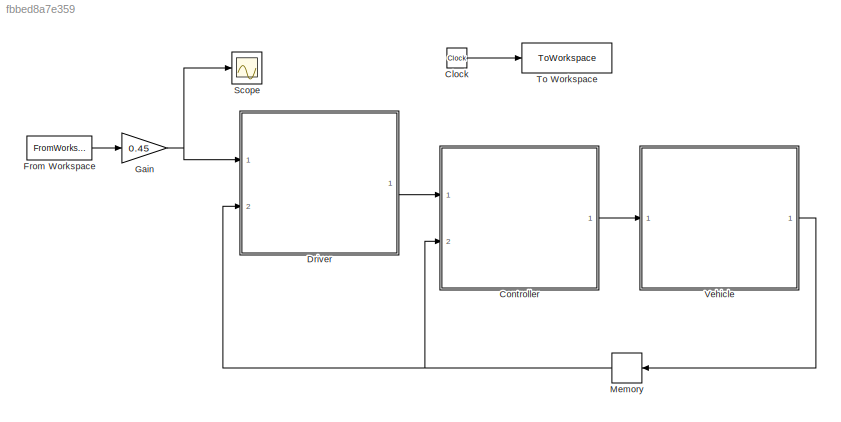
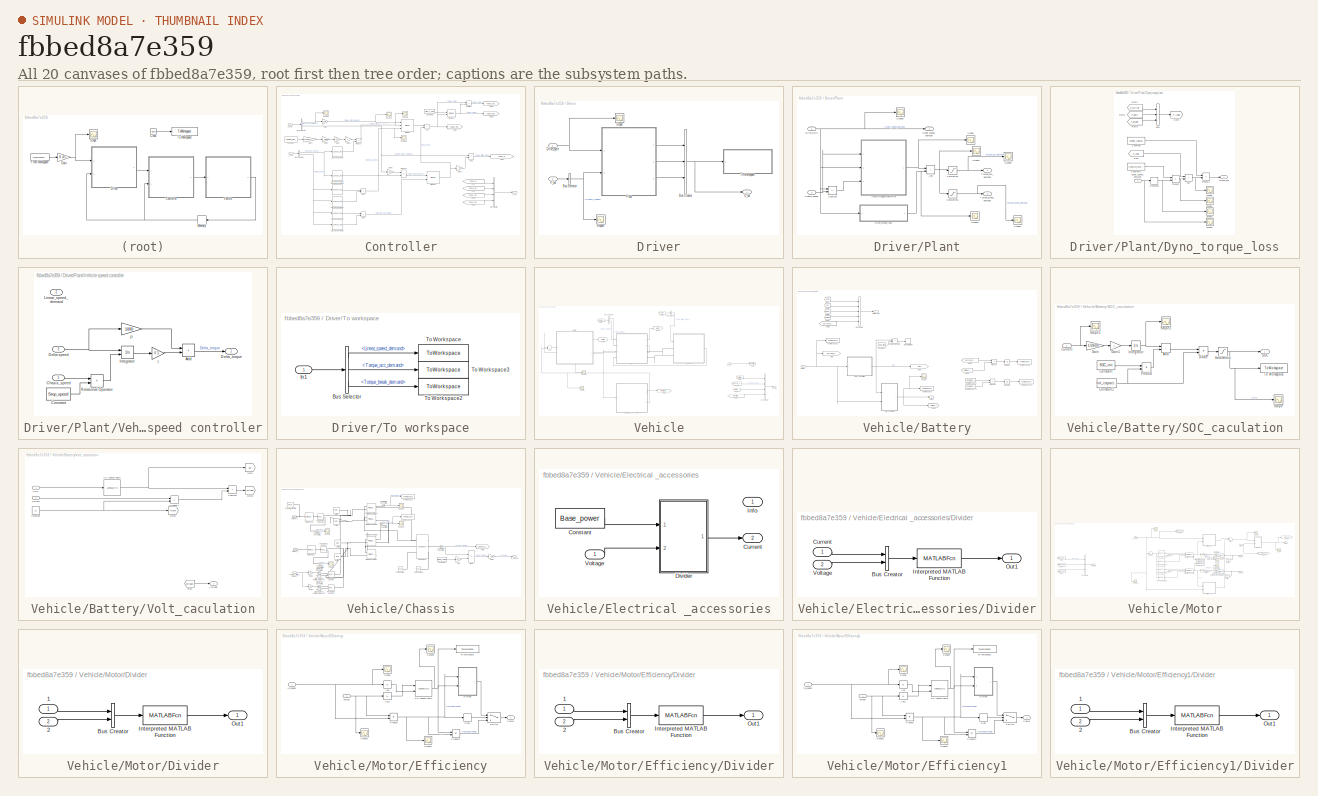
[diagram: thumbnail index - all 20 canvases of the model, root first then tree order]
MODEL slx_fbbed8a7e359
KIND model
CONFIG AbsTol = auto
CONFIG EnableMultiTasking = off
CONFIG FixedStep = 0.01
CONFIG MaxStep = auto
CONFIG MinStep = auto
CONFIG RelTol = 1e-3
CONFIG SampleTimeConstraint = Unconstrained
CONFIG SolverName = FixedStepAuto
CONFIG StartTime = 0.0
CONFIG StopTime = 10.0
WORKSPACE source: external: MAT-File  (data not in archive)
BLOCK [Clock] Clock
BLOCK [SubSystem] Controller
  Ports = [2, 1]
  RequestExecContextInheritance = off
BLOCK [Lookup_n-D] Controller/1-D Lookup Table
  BreakpointsForDimension1 = f_tire_speed
  InputPortMap = u0
  InternalRulePriority = Speed
  NumberOfTableDimensions = 1
  Ports = [1, 1]
  RndMeth = Simplest
  Table = f_tire_friction
BLOCK [Lookup_n-D] Controller/1-D Lookup Table1
  BreakpointsForDimension1 = Torque_curve_speed_3D1
  InputPortMap = u0
  InternalRulePriority = Speed
  NumberOfTableDimensions = 1
  Ports = [1, 1]
  RndMeth = Simplest
  Table = Torque_curve_torque_3D1
BLOCK [Lookup_n-D] Controller/1-D Lookup Table2
  BreakpointsForDimension1 = Regen_speed
  InputPortMap = u0
  InternalRulePriority = Speed
  NumberOfTableDimensions = 1
  Ports = [1, 1]
  RndMeth = Simplest
  Table = Regen_fraction
BLOCK [Lookup_n-D] Controller/1-D Lookup Table3
  BreakpointsForDimension1 = Torque_curve_speed_3D1
  InputPortMap = u0
  InternalRulePriority = Speed
  NumberOfTableDimensions = 1
  Ports = [1, 1]
  RndMeth = Simplest
  Table = -Torque_curve_torque_3D1
BLOCK [Lookup_n-D] Controller/1-D Lookup Table4
  BreakpointsForDimension1 = Torque_curve_speed_3D3
  InputPortMap = u0
  InternalRulePriority = Speed
  NumberOfTableDimensions = 1
  Ports = [1, 1]
  RndMeth = Simplest
  Table = Torque_curve_torque_3D3
BLOCK [Lookup_n-D] Controller/1-D Lookup Table5
  BreakpointsForDimension1 = Torque_curve_speed_3D3
  InputPortMap = u0
  InternalRulePriority = Speed
  NumberOfTableDimensions = 1
  Ports = [1, 1]
  RndMeth = Simplest
  Table = -Torque_curve_torque_3D3
BLOCK [Sum] Controller/Add
  IconShape = rectangular
  Ports = [2, 1]
BLOCK [Sum] Controller/Add1
  IconShape = rectangular
  Inputs = +-
  Ports = [2, 1]
BLOCK [Sum] Controller/Add2
  IconShape = rectangular
  Ports = [2, 1]
BLOCK [Sum] Controller/Add3
  IconShape = rectangular
  Ports = [2, 1]
BLOCK [BusCreator] Controller/Bus Creator
  DisplayOption = bar
  InheritFromInputs = on
  Inputs = 4
  Ports = [4, 1]
BLOCK [BusSelector] Controller/Bus Selector
  OutputSignals = Torque_acc_demand,Torque_break_demand
  Ports = [1, 2]
BLOCK [BusSelector] Controller/Bus Selector1
  OutputSignals = Chassis_speed,signal3.Motor_speed
  Ports = [1, 2]
BLOCK [Outport] Controller/C_out
BLOCK [Constant] Controller/Constant
  Value = Vehicle_weight
BLOCK [Constant] Controller/Constant1
  Value = Max_T_3D1
BLOCK [Inport] Controller/D_out
BLOCK [From] Controller/From
  GotoTag = Torque_friction_break
BLOCK [From] Controller/From1
  GotoTag = Torque_motor
BLOCK [From] Controller/From2
  GotoTag = Torque_motor_r
BLOCK [From] Controller/From3
  GotoTag = Torque_motor_f
BLOCK [Gain] Controller/Gain
  Gain = 1/f_d
BLOCK [Gain] Controller/Gain1
  Gain = 1/f_d
BLOCK [Gain] Controller/Gain2
  Gain = g
BLOCK [Gain] Controller/Gain3
  Gain = r_mass
BLOCK [Gain] Controller/Gain4
  Gain = Wheel_radius
BLOCK [Gain] Controller/Gain5
  Gain = 1/f_d
BLOCK [Gain] Controller/Gain6
  Gain = f_d
BLOCK [Goto] Controller/Goto
  GotoTag = Torque_motor
BLOCK [Goto] Controller/Goto1
  GotoTag = Torque_friction_break
BLOCK [Goto] Controller/Goto2
  GotoTag = Torque_motor_f
BLOCK [Goto] Controller/Goto3
  GotoTag = Torque_motor_r
BLOCK [MinMax] Controller/MinMax
  Inputs = 3
  Ports = [3, 1]
BLOCK [MinMax] Controller/MinMax1
  Function = max
  Inputs = 2
  Ports = [2, 1]
BLOCK [MinMax] Controller/MinMax2
  Inputs = 2
  Ports = [2, 1]
BLOCK [Product] Controller/Product
  Ports = [2, 1]
BLOCK [Product] Controller/Product1
  Ports = [2, 1]
BLOCK [Scope] Controller/Scope1
  Floating = off
  NumInputPorts = 1
  Ports = [1]
  ScopeSpecificationString = Simulink.scopes.TimeScopeBlockCfg('CurrentConfiguration', extmgr.ConfigurationSet(extmgr.Configuration('Core','General UI',true),extmgr.Configuration('Core','Source UI',true),extmgr.Configuration('Sources','WiredSimulink',true,'DataLoggingVariableName','ScopeData7'),extmgr.Configuration('Visuals','Time Domain',true,'SerializedDisplays',{struct('MinYLimReal','-20.39299','MaxYLimReal','183.53689','Y...<+1411ch>
BLOCK [Scope] Controller/Scope2
  Floating = off
  NumInputPorts = 1
  Ports = [1]
  ScopeSpecificationString = Simulink.scopes.TimeScopeBlockCfg('CurrentConfiguration', extmgr.ConfigurationSet(extmgr.Configuration('Core','General UI',true),extmgr.Configuration('Core','Source UI',true),extmgr.Configuration('Sources','WiredSimulink',true,'DataLoggingVariableName','ScopeData8'),extmgr.Configuration('Visuals','Time Domain',true,'SerializedDisplays',{struct('MinYLimReal','-20.39299','MaxYLimReal','183.53689','Y...<+1411ch>
BLOCK [Scope] Controller/Scope3
  Floating = off
  NumInputPorts = 1
  Ports = [1]
  ScopeSpecificationString = Simulink.scopes.TimeScopeBlockCfg('CurrentConfiguration', extmgr.ConfigurationSet(extmgr.Configuration('Core','General UI',true),extmgr.Configuration('Core','Source UI',true),extmgr.Configuration('Sources','WiredSimulink',true,'DataLoggingVariableName','ScopeData9'),extmgr.Configuration('Visuals','Time Domain',true,'SerializedDisplays',{struct('MinYLimReal','-20.39299','MaxYLimReal','183.53689','Y...<+1411ch>
BLOCK [Scope] Controller/Scope4
  Floating = off
  NumInputPorts = 1
  Ports = [1]
  ScopeSpecificationString = Simulink.scopes.TimeScopeBlockCfg('CurrentConfiguration', extmgr.ConfigurationSet(extmgr.Configuration('Core','General UI',true),extmgr.Configuration('Core','Source UI',true),extmgr.Configuration('Sources','WiredSimulink',true,'DataLoggingVariableName','ScopeData10'),extmgr.Configuration('Visuals','Time Domain',true,'SerializedDisplays',{struct('MinYLimReal','-20.39299','MaxYLimReal','183.53689','...<+1412ch>
BLOCK [Sum] Controller/Subtract
  IconShape = rectangular
  Inputs = +-
  Ports = [2, 1]
BLOCK [Inport] Controller/V_out
  Port = 2
BLOCK [SubSystem] Driver
  Ports = [2, 1]
  RequestExecContextInheritance = off
BLOCK [BusCreator] Driver/Bus Creator
  DisplayOption = bar
  InheritFromInputs = on
  Inputs = 3
  Ports = [3, 1]
BLOCK [BusSelector] Driver/Bus Selector
  OutputSignals = Chassis_speed
  Ports = [1, 1]
BLOCK [Outport] Driver/D_out
BLOCK [Inport] Driver/Drive_cycle
BLOCK [SubSystem] Driver/Plant
  Ports = [2, 3]
  RequestExecContextInheritance = off
BLOCK [Sum] Driver/Plant/Add
  IconShape = rectangular
  Ports = [2, 1]
BLOCK [Inport] Driver/Plant/Chasis_speed
  Port = 2
BLOCK [Inport] Driver/Plant/Drive_cycle
BLOCK [SubSystem] Driver/Plant/Dyno_torque_loss
  Ports = [1, 1]
  RequestExecContextInheritance = off
BLOCK [Sum] Driver/Plant/Dyno_torque_loss/Add
  IconShape = rectangular
  Ports = [2, 1]
BLOCK [Sum] Driver/Plant/Dyno_torque_loss/Add1
  IconShape = rectangular
  Inputs = +++
  Ports = [3, 1]
BLOCK [Constant] Driver/Plant/Dyno_torque_loss/Constant
  Value = Wheel_radius
BLOCK [Constant] Driver/Plant/Dyno_torque_loss/Constant1
  Value = Vehicle_weight
BLOCK [Derivative] Driver/Plant/Dyno_torque_loss/Derivative
BLOCK [From] Driver/Plant/Dyno_torque_loss/From
  GotoTag = F_load
BLOCK [From] Driver/Plant/Dyno_torque_loss/From1
  GotoTag = F_rolling
BLOCK [From] Driver/Plant/Dyno_torque_loss/From2
  GotoTag = F_aero
BLOCK [From] Driver/Plant/Dyno_torque_loss/From3
  GotoTag = F_grade
BLOCK [Goto] Driver/Plant/Dyno_torque_loss/Goto
  GotoTag = F_load
BLOCK [Inport] Driver/Plant/Dyno_torque_loss/Linear_speed_demand
BLOCK [Product] Driver/Plant/Dyno_torque_loss/Product
  Ports = [2, 1]
BLOCK [Product] Driver/Plant/Dyno_torque_loss/Product1
  Ports = [2, 1]
BLOCK [Scope] Driver/Plant/Dyno_torque_loss/Scope
  Floating = off
  NumInputPorts = 1
  Ports = [1]
  ScopeSpecificationString = Simulink.scopes.TimeScopeBlockCfg('CurrentConfiguration', extmgr.ConfigurationSet(extmgr.Configuration('Core','General UI',true),extmgr.Configuration('Core','Source UI',true),extmgr.Configuration('Sources','WiredSimulink',true,'DataLoggingVariableName','ScopeData9'),extmgr.Configuration('Visuals','Time Domain',true),extmgr.Configuration('Tools','Plot Navigation',true),extmgr.Configuration('Tools',...<+40ch>
BLOCK [Scope] Driver/Plant/Dyno_torque_loss/Scope1
  Floating = off
  NumInputPorts = 1
  Ports = [1]
  ScopeSpecificationString = Simulink.scopes.TimeScopeBlockCfg('CurrentConfiguration', extmgr.ConfigurationSet(extmgr.Configuration('Core','General UI',true),extmgr.Configuration('Core','Source UI',true),extmgr.Configuration('Sources','WiredSimulink',true,'DataLoggingVariableName','ScopeData10'),extmgr.Configuration('Visuals','Time Domain',true),extmgr.Configuration('Tools','Plot Navigation',true),extmgr.Configuration('Tools'...<+41ch>
BLOCK [Scope] Driver/Plant/Dyno_torque_loss/Scope2
  Floating = off
  NumInputPorts = 1
  Ports = [1]
  ScopeSpecificationString = Simulink.scopes.TimeScopeBlockCfg('CurrentConfiguration', extmgr.ConfigurationSet(extmgr.Configuration('Core','General UI',true),extmgr.Configuration('Core','Source UI',true),extmgr.Configuration('Sources','WiredSimulink',true,'DataLoggingVariableName','ScopeData11'),extmgr.Configuration('Visuals','Time Domain',true,'SerializedDisplays',{struct('MinYLimReal','-19.68581','MaxYLimReal','6.21731','YL...<+1405ch>
BLOCK [Scope] Driver/Plant/Dyno_torque_loss/Scope3
  Floating = off
  NumInputPorts = 1
  Ports = [1]
  ScopeSpecificationString = Simulink.scopes.TimeScopeBlockCfg('CurrentConfiguration', extmgr.ConfigurationSet(extmgr.Configuration('Core','General UI',true),extmgr.Configuration('Core','Source UI',true),extmgr.Configuration('Sources','WiredSimulink',true,'DataLoggingVariableName','ScopeData12'),extmgr.Configuration('Visuals','Time Domain',true,'SerializedDisplays',{struct('MinYLimReal','-4.50748','MaxYLimReal','40.56733','YL...<+1414ch>
BLOCK [Outport] Driver/Plant/Dyno_torque_loss/Torque_loss
BLOCK [Outport] Driver/Plant/Linear_speed_demand
BLOCK [Saturate] Driver/Plant/Saturation
  LowerLimit = 0
  UpperLimit = inf
BLOCK [Saturate] Driver/Plant/Saturation1
  LowerLimit = -inf
  UpperLimit = 0
BLOCK [Scope] Driver/Plant/Scope
  Floating = off
  NumInputPorts = 1
  Ports = [1]
  ScopeSpecificationString = Simulink.scopes.TimeScopeBlockCfg('CurrentConfiguration', extmgr.ConfigurationSet(extmgr.Configuration('Core','General UI',true),extmgr.Configuration('Core','Source UI',true),extmgr.Configuration('Sources','WiredSimulink',true,'DataLoggingVariableName','ScopeData1'),extmgr.Configuration('Visuals','Time Domain',true,'SerializedDisplays',{struct('MinYLimReal','-1813.09235','MaxYLimReal','2092.77081'...<+1433ch>
BLOCK [Scope] Driver/Plant/Scope1
  Floating = off
  NumInputPorts = 1
  Ports = [1]
  ScopeSpecificationString = Simulink.scopes.TimeScopeBlockCfg('CurrentConfiguration', extmgr.ConfigurationSet(extmgr.Configuration('Core','General UI',true),extmgr.Configuration('Core','Source UI',true),extmgr.Configuration('Sources','WiredSimulink',true,'DataLoggingVariableName','ScopeData2'),extmgr.Configuration('Visuals','Time Domain',true,'SerializedDisplays',{struct('MinYLimReal','-7984.83576','MaxYLimReal','2647.52223'...<+1384ch>
BLOCK [Scope] Driver/Plant/Scope2
  Floating = off
  NumInputPorts = 1
  Ports = [1]
  ScopeSpecificationString = Simulink.scopes.TimeScopeBlockCfg('CurrentConfiguration', extmgr.ConfigurationSet(extmgr.Configuration('Core','General UI',true),extmgr.Configuration('Core','Source UI',true),extmgr.Configuration('Sources','WiredSimulink',true,'DataLoggingVariableName','ScopeData3'),extmgr.Configuration('Visuals','Time Domain',true,'SerializedDisplays',{struct('MinYLimReal','-464.54506','MaxYLimReal','4180.90554',...<+1394ch>
BLOCK [Scope] Driver/Plant/Scope3
  Floating = off
  NumInputPorts = 1
  Ports = [1]
  ScopeSpecificationString = Simulink.scopes.TimeScopeBlockCfg('CurrentConfiguration', extmgr.ConfigurationSet(extmgr.Configuration('Core','General UI',true),extmgr.Configuration('Core','Source UI',true),extmgr.Configuration('Sources','WiredSimulink',true,'DataLoggingVariableName','ScopeData4'),extmgr.Configuration('Visuals','Time Domain',true,'SerializedDisplays',{struct('MinYLimReal','-2592.95653','MaxYLimReal','2726.82253'...<+1427ch>
BLOCK [Scope] Driver/Plant/Scope4
  Floating = off
  NumInputPorts = 1
  Ports = [1]
  ScopeSpecificationString = Simulink.scopes.TimeScopeBlockCfg('CurrentConfiguration', extmgr.ConfigurationSet(extmgr.Configuration('Core','General UI',true),extmgr.Configuration('Core','Source UI',true),extmgr.Configuration('Sources','WiredSimulink',true,'DataLoggingVariableName','ScopeData5'),extmgr.Configuration('Visuals','Time Domain',true,'SerializedDisplays',{struct('MinYLimReal','-3878.01515','MaxYLimReal','430.89057',...<+1398ch>
BLOCK [Scope] Driver/Plant/Scope5
  Floating = off
  NumInputPorts = 1
  Ports = [1]
  ScopeSpecificationString = Simulink.scopes.TimeScopeBlockCfg('CurrentConfiguration', extmgr.ConfigurationSet(extmgr.Configuration('Core','General UI',true),extmgr.Configuration('Core','Source UI',true),extmgr.Configuration('Sources','WiredSimulink',true,'DataLoggingVariableName','ScopeData1'),extmgr.Configuration('Visuals','Time Domain',true,'SerializedDisplays',{struct('MinYLimReal','-3.36397','MaxYLimReal','30.27577','YLa...<+1430ch>
BLOCK [Sum] Driver/Plant/Subtract
  IconShape = rectangular
  Inputs = +-
  Ports = [2, 1]
BLOCK [Outport] Driver/Plant/Torque_acc_demand
  Port = 2
BLOCK [Outport] Driver/Plant/Torque_break_demand
  Port = 3
BLOCK [SubSystem] Driver/Plant/Vehicle speed controller
  Ports = [3, 1]
  RequestExecContextInheritance = off
BLOCK [Sum] Driver/Plant/Vehicle speed controller/Add
  IconShape = rectangular
  Ports = [2, 1]
BLOCK [Inport] Driver/Plant/Vehicle speed controller/Chasis_speed
BLOCK [Constant] Driver/Plant/Vehicle speed controller/Constant
  Value = Stop_speed
BLOCK [Inport] Driver/Plant/Vehicle speed controller/Delta speed
  Port = 3
BLOCK [Outport] Driver/Plant/Vehicle speed controller/Delta_torque
BLOCK [Gain] Driver/Plant/Vehicle speed controller/I
  Gain = 0.5
BLOCK [Integrator] Driver/Plant/Vehicle speed controller/Integrator
  ExternalReset = either
  Ports = [2, 1]
BLOCK [Inport] Driver/Plant/Vehicle speed controller/Linear_speed_demand
  Port = 2
BLOCK [Gain] Driver/Plant/Vehicle speed controller/P
  Gain = 1000
BLOCK [RelationalOperator] Driver/Plant/Vehicle speed controller/Relational Operator
  InputSameDT = off
  Operator = <
  OutDataTypeStr = boolean
  Ports = [2, 1]
  RndMeth = Simplest
BLOCK [Scope] Driver/Scope
  Floating = off
  NumInputPorts = 1
  Ports = [1]
  ScopeSpecificationString = Simulink.scopes.TimeScopeBlockCfg('CurrentConfiguration', extmgr.ConfigurationSet(extmgr.Configuration('Core','General UI',true),extmgr.Configuration('Core','Source UI',true),extmgr.Configuration('Sources','WiredSimulink',true,'DataLoggingVariableName','ScopeData22'),extmgr.Configuration('Visuals','Time Domain',true,'SerializedDisplays',{struct('MinYLimReal','-1.7253','MaxYLimReal','15.5277','YLab...<+1445ch>
BLOCK [Scope] Driver/Scope1
  Floating = off
  NumInputPorts = 1
  Ports = [1]
  ScopeSpecificationString = Simulink.scopes.TimeScopeBlockCfg('CurrentConfiguration', extmgr.ConfigurationSet(extmgr.Configuration('Core','General UI',true),extmgr.Configuration('Core','Source UI',true),extmgr.Configuration('Sources','WiredSimulink',true,'DataLoggingVariableName','ScopeData23'),extmgr.Configuration('Visuals','Time Domain',true,'SerializedDisplays',{struct('MinYLimReal','-3.34864','MaxYLimReal','29.96211','YL...<+1437ch>
BLOCK [SubSystem] Driver/To workspace
  Ports = [1]
  RequestExecContextInheritance = off
BLOCK [BusSelector] Driver/To workspace/Bus Selector
  OutputSignals = Linear_speed_demand,Torque_acc_demand,Torque_break_demand
  Ports = [1, 3]
BLOCK [Inport] Driver/To workspace/In1
BLOCK [ToWorkspace] Driver/To workspace/To Workspace
  Decimation = 10
  MaxDataPoints = inf
  Ports = [1]
  SampleTime = 0.1
  Save2DSignal = 2-D array (concatenate along first dimension)
  VariableName = Linear_speed_demand
BLOCK [ToWorkspace] Driver/To workspace/To Workspace2
  Decimation = 10
  MaxDataPoints = inf
  Ports = [1]
  SampleTime = -1
  VariableName = Torque_break_demand
BLOCK [ToWorkspace] Driver/To workspace/To Workspace3
  Decimation = 10
  MaxDataPoints = inf
  Ports = [1]
  SampleTime = -1
  VariableName = Torque_acc_demand
BLOCK [Inport] Driver/V_out
  Port = 2
BLOCK [FromWorkspace] From Workspace
  VariableName = Drive_cycle
BLOCK [Gain] Gain
  Gain = 0.45
BLOCK [Memory] Memory
  InheritSampleTime = on
  LinearizeAsDelay = on
  LinearizeMemory = on
BLOCK [Scope] Scope
  Floating = off
  NumInputPorts = 1
  Ports = [1]
  ScopeSpecificationString = Simulink.scopes.TimeScopeBlockCfg('CurrentConfiguration', extmgr.ConfigurationSet(extmgr.Configuration('Core','General UI',true),extmgr.Configuration('Core','Source UI',true),extmgr.Configuration('Sources','WiredSimulink',true,'DataLoggingVariableName','ScopeData7'),extmgr.Configuration('Visuals','Time Domain',true,'SerializedDisplays',{struct('MinYLimReal','-4.50748','MaxYLimReal','80.133','YLabe...<+1435ch>
BLOCK [ToWorkspace] To Workspace
  FixptAsFi = on
  MaxDataPoints = inf
  Ports = [1]
  SampleTime = -1
  SaveFormat = Timeseries
  VariableName = Sim_time
BLOCK [SubSystem] Vehicle
  Ports = [1, 1]
  RequestExecContextInheritance = off
BLOCK [Sum] Vehicle/Add
  IconShape = rectangular
  Ports = [2, 1]
BLOCK [SubSystem] Vehicle/Battery
  Ports = [1, 2]
  RequestExecContextInheritance = off
BLOCK [Outport] Vehicle/Battery/Battery_info
BLOCK [BusCreator] Vehicle/Battery/Bus Creator
  DisplayOption = bar
  InheritFromInputs = on
  Inputs = 5
  Ports = [5, 1]
BLOCK [Constant] Vehicle/Battery/Constant
  Value = SOC_min
BLOCK [Inport] Vehicle/Battery/Current
BLOCK [From] Vehicle/Battery/From
  GotoTag = SOC
BLOCK [FromWorkspace] Vehicle/Battery/From Workspace
  VariableName = I
BLOCK [FromWorkspace] Vehicle/Battery/From Workspace1
  VariableName = V
BLOCK [From] Vehicle/Battery/From1
  GotoTag = Current_needed
BLOCK [From] Vehicle/Battery/From2
  GotoTag = Current_needed
BLOCK [From] Vehicle/Battery/From3
  GotoTag = Voc
  TagVisibility = global
BLOCK [From] Vehicle/Battery/From4
  GotoTag = Voltage
  TagVisibility = global
BLOCK [From] Vehicle/Battery/From5
  GotoTag = Rohm
  TagVisibility = global
BLOCK [From] Vehicle/Battery/From6
  GotoTag = Voltage_t
BLOCK [Goto] Vehicle/Battery/Goto
  GotoTag = Current_needed
BLOCK [Goto] Vehicle/Battery/Goto1
  GotoTag = SOC
BLOCK [Goto] Vehicle/Battery/Goto2
  GotoTag = Voltage_t
BLOCK [Integrator] Vehicle/Battery/Integrator
  Ports = [1, 1]
BLOCK [Integrator] Vehicle/Battery/Integrator1
  Ports = [1, 1]
BLOCK [Product] Vehicle/Battery/Product
  Ports = [2, 1]
BLOCK [Product] Vehicle/Battery/Product1
  Ports = [2, 1]
BLOCK [RelationalOperator] Vehicle/Battery/Relational Operator
  InputSameDT = off
  Operator = <
  OutDataTypeStr = boolean
  Ports = [2, 1]
  RndMeth = Simplest
BLOCK [SubSystem] Vehicle/Battery/SOC_caculation
  Ports = [1, 1]
  RequestExecContextInheritance = off
BLOCK [Sum] Vehicle/Battery/SOC_caculation/Add
  IconShape = rectangular
  Ports = [2, 1]
BLOCK [Constant] Vehicle/Battery/SOC_caculation/Constant
  Value = SOC_init
BLOCK [Constant] Vehicle/Battery/SOC_caculation/Constant1
  Value = Init_capacity
BLOCK [Inport] Vehicle/Battery/SOC_caculation/Current
BLOCK [Product] Vehicle/Battery/SOC_caculation/Divide
  Inputs = */
  Ports = [2, 1]
BLOCK [Gain] Vehicle/Battery/SOC_caculation/Gain
  Gain = 1/3600
BLOCK [Gain] Vehicle/Battery/SOC_caculation/Gain1
  Gain = -1
BLOCK [Integrator] Vehicle/Battery/SOC_caculation/Integrator
  Ports = [1, 1]
BLOCK [Product] Vehicle/Battery/SOC_caculation/Product
  Ports = [2, 1]
BLOCK [Outport] Vehicle/Battery/SOC_caculation/SOC
  NameLocation = top
BLOCK [Saturate] Vehicle/Battery/SOC_caculation/Saturation
  LowerLimit = 0
  UpperLimit = 1
BLOCK [Scope] Vehicle/Battery/SOC_caculation/Scope
  Floating = off
  NumInputPorts = 1
  Ports = [1]
  ScopeSpecificationString = Simulink.scopes.TimeScopeBlockCfg('CurrentConfiguration', extmgr.ConfigurationSet(extmgr.Configuration('Core','General UI',true),extmgr.Configuration('Core','Source UI',true),extmgr.Configuration('Sources','WiredSimulink',true,'DataLoggingVariableName','ScopeData6'),extmgr.Configuration('Visuals','Time Domain',true,'SerializedDisplays',{struct('MinYLimReal','0.67179','MaxYLimReal','1.03647','YLabe...<+1391ch>
BLOCK [Scope] Vehicle/Battery/SOC_caculation/Scope1
  Floating = off
  NumInputPorts = 1
  Ports = [1]
  ScopeSpecificationString = Simulink.scopes.TimeScopeBlockCfg('CurrentConfiguration', extmgr.ConfigurationSet(extmgr.Configuration('Core','General UI',true),extmgr.Configuration('Core','Source UI',true),extmgr.Configuration('Sources','WiredSimulink',true,'DataLoggingVariableName','ScopeData24'),extmgr.Configuration('Visuals','Time Domain',true,'SerializedDisplays',{struct('MinYLimReal','-18.80834','MaxYLimReal','44.43856','Y...<+1404ch>
BLOCK [Scope] Vehicle/Battery/SOC_caculation/Scope2
  Floating = off
  NumInputPorts = 1
  Ports = [1]
  ScopeSpecificationString = Simulink.scopes.TimeScopeBlockCfg('CurrentConfiguration', extmgr.ConfigurationSet(extmgr.Configuration('Core','General UI',true),extmgr.Configuration('Core','Source UI',true),extmgr.Configuration('Sources','WiredSimulink',true,'DataLoggingVariableName','ScopeData26'),extmgr.Configuration('Visuals','Time Domain',true,'SerializedDisplays',{struct('MinYLimReal','-57.6882','MaxYLimReal','6.4098','YLab...<+1399ch>
BLOCK [ToWorkspace] Vehicle/Battery/SOC_caculation/To Workspace
  FixptAsFi = on
  MaxDataPoints = inf
  Ports = [1]
  SampleTime = 0.1
  VariableName = SOC
BLOCK [Scope] Vehicle/Battery/Scope
  Floating = off
  NumInputPorts = 1
  Ports = [1]
  ScopeSpecificationString = Simulink.scopes.TimeScopeBlockCfg('CurrentConfiguration', extmgr.ConfigurationSet(extmgr.Configuration('Core','General UI',true),extmgr.Configuration('Core','Source UI',true),extmgr.Configuration('Sources','WiredSimulink',true,'DataLoggingVariableName','ScopeData25','DataLoggingSaveFormat','Array','DataLoggingLimitDataPoints',true,'DataLoggingDecimation','1'),extmgr.Configuration('Visuals','Time D...<+1683ch>
BLOCK [Stop] Vehicle/Battery/Stop Simulation
BLOCK [ToWorkspace] Vehicle/Battery/To Workspace
  FixptAsFi = on
  MaxDataPoints = inf
  Ports = [1]
  SampleTime = 0.1
  VariableName = Battery_volage
BLOCK [ToWorkspace] Vehicle/Battery/To Workspace1
  FixptAsFi = on
  MaxDataPoints = inf
  Ports = [1]
  SampleTime = 0.1
  VariableName = Battery_current
BLOCK [ToWorkspace] Vehicle/Battery/To Workspace2
  FixptAsFi = on
  MaxDataPoints = inf
  Ports = [1]
  SampleTime = -1
  VariableName = engergy
BLOCK [ToWorkspace] Vehicle/Battery/To Workspace3
  FixptAsFi = on
  MaxDataPoints = inf
  Ports = [1]
  SampleTime = -1
  VariableName = logged_engergy
BLOCK [SubSystem] Vehicle/Battery/Volt_caculation
  Ports = [2, 1]
  RequestExecContextInheritance = off
BLOCK [Lookup_n-D] Vehicle/Battery/Volt_caculation/1-D Lookup Table
  BreakpointsForDimension1 = OCV_SOC
  InputPortMap = u0
  InternalRulePriority = Speed
  NumberOfTableDimensions = 1
  Ports = [1, 1]
  RndMeth = Simplest
  Table = OCV
BLOCK [Constant] Vehicle/Battery/Volt_caculation/Constant
  Value = 0.1
BLOCK [Inport] Vehicle/Battery/Volt_caculation/Current
  Port = 2
BLOCK [From] Vehicle/Battery/Volt_caculation/From
  GotoTag = Voltage
  TagVisibility = global
BLOCK [Goto] Vehicle/Battery/Volt_caculation/Goto
  GotoTag = Voc
  TagVisibility = global
BLOCK [Goto] Vehicle/Battery/Volt_caculation/Goto1
  GotoTag = Rohm
  TagVisibility = global
BLOCK [Goto] Vehicle/Battery/Volt_caculation/Goto2
  GotoTag = Voltage
  TagVisibility = global
BLOCK [Product] Vehicle/Battery/Volt_caculation/Product1
  Ports = [2, 1]
BLOCK [Inport] Vehicle/Battery/Volt_caculation/SOC
BLOCK [Sum] Vehicle/Battery/Volt_caculation/Subtract
  IconShape = rectangular
  Inputs = +-
  Ports = [2, 1]
BLOCK [Outport] Vehicle/Battery/Volt_caculation/Voltage
BLOCK [Outport] Vehicle/Battery/Voltage
  NameLocation = right
  Port = 2
BLOCK [BusCreator] Vehicle/Bus Creator
  DisplayOption = bar
  InheritFromInputs = on
  Inputs = 4
  Ports = [4, 1]
BLOCK [BusSelector] Vehicle/Bus Selector
  OutputSignals = Torque_friction_break
  Ports = [1, 1]
BLOCK [BusSelector] Vehicle/Bus Selector1
  OutputSignals = Torque_motor_r,Torque_motor_f
  Ports = [1, 2]
BLOCK [Inport] Vehicle/C_out
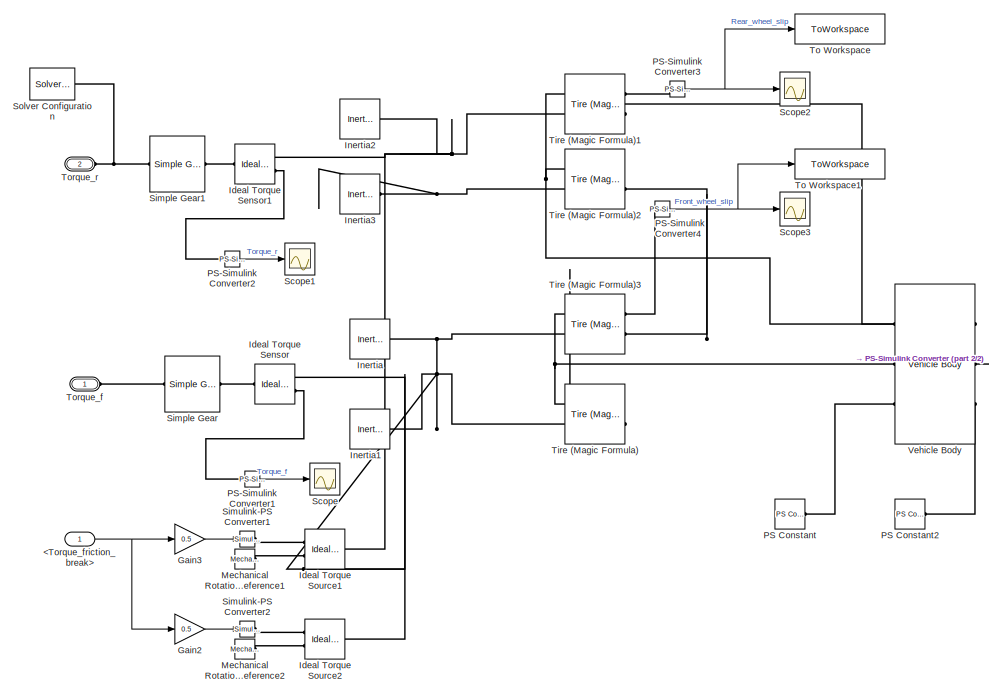
[diagram: Vehicle/Chassis - part 1/2, left side, full height]
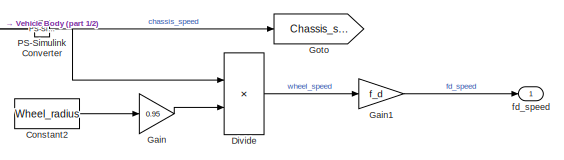
[diagram: Vehicle/Chassis - part 2/2, middle right region]
BLOCK [SubSystem] Vehicle/Chassis
  Ports = [1, 1, 0, 0, 0, 2]
  RequestExecContextInheritance = off
BLOCK [Inport] Vehicle/Chassis/<Torque_friction_break>
BLOCK [Constant] Vehicle/Chassis/Constant2
  Value = Wheel_radius
BLOCK [Product] Vehicle/Chassis/Divide
  Inputs = */
  Ports = [2, 1]
BLOCK [Gain] Vehicle/Chassis/Gain
  Gain = 0.95
BLOCK [Gain] Vehicle/Chassis/Gain1
  Gain = f_d
BLOCK [Gain] Vehicle/Chassis/Gain2
  Gain = 0.5
BLOCK [Gain] Vehicle/Chassis/Gain3
  Gain = 0.5
BLOCK [Goto] Vehicle/Chassis/Goto
  GotoTag = Chassis_speed
  TagVisibility = global
BLOCK [Reference] Vehicle/Chassis/Ideal Torque Sensor  REF=fl_lib/Mechanical/Mechanical Sensors/Ideal Torque Sensor
  Ports = [0, 0, 0, 0, 0, 1, 2]
  SourceBlock = fl_lib/Mechanical/Mechanical Sensors/Ideal Torque Sensor
  SourceProductBaseCode = SS
  SourceType = Ideal Torque Sensor
BLOCK [Reference] Vehicle/Chassis/Ideal Torque Sensor1  REF=fl_lib/Mechanical/Mechanical Sensors/Ideal Torque Sensor
  Ports = [0, 0, 0, 0, 0, 1, 2]
  SourceBlock = fl_lib/Mechanical/Mechanical Sensors/Ideal Torque Sensor
  SourceProductBaseCode = SS
  SourceType = Ideal Torque Sensor
BLOCK [Reference] Vehicle/Chassis/Ideal Torque Source1  REF=fl_lib/Mechanical/Mechanical Sources/Ideal Torque Source
  Ports = [0, 0, 0, 0, 0, 1, 2]
  SourceBlock = fl_lib/Mechanical/Mechanical Sources/Ideal Torque Source
  SourceProductBaseCode = SS
  SourceType = Ideal Torque Source
BLOCK [Reference] Vehicle/Chassis/Ideal Torque Source2  REF=fl_lib/Mechanical/Mechanical Sources/Ideal Torque Source
  Ports = [0, 0, 0, 0, 0, 1, 2]
  SourceBlock = fl_lib/Mechanical/Mechanical Sources/Ideal Torque Source
  SourceProductBaseCode = SS
  SourceType = Ideal Torque Source
BLOCK [Reference] Vehicle/Chassis/Inertia  REF=fl_lib/Mechanical/Rotational Elements/Inertia
  Ports = [0, 0, 0, 0, 0, 1]
  SourceBlock = fl_lib/Mechanical/Rotational Elements/Inertia
  SourceProductBaseCode = SS
  SourceType = Inertia
BLOCK [Reference] Vehicle/Chassis/Inertia1  REF=fl_lib/Mechanical/Rotational Elements/Inertia
  Ports = [0, 0, 0, 0, 0, 1]
  SourceBlock = fl_lib/Mechanical/Rotational Elements/Inertia
  SourceProductBaseCode = SS
  SourceType = Inertia
BLOCK [Reference] Vehicle/Chassis/Inertia2  REF=fl_lib/Mechanical/Rotational Elements/Inertia
  Ports = [0, 0, 0, 0, 0, 1]
  SourceBlock = fl_lib/Mechanical/Rotational Elements/Inertia
  SourceProductBaseCode = SS
  SourceType = Inertia
BLOCK [Reference] Vehicle/Chassis/Inertia3  REF=fl_lib/Mechanical/Rotational Elements/Inertia
  Ports = [0, 0, 0, 0, 0, 1]
  SourceBlock = fl_lib/Mechanical/Rotational Elements/Inertia
  SourceProductBaseCode = SS
  SourceType = Inertia
BLOCK [Reference] Vehicle/Chassis/Mechanical Rotational Reference1  REF=fl_lib/Mechanical/Rotational Elements/Mechanical
Rotational Reference
  Ports = [0, 0, 0, 0, 0, 1]
  SourceBlock = fl_lib/Mechanical/Rotational Elements/Mechanical\nRotational Reference
  SourceProductBaseCode = SS
  SourceType = Mechanical\nRotational Reference
BLOCK [Reference] Vehicle/Chassis/Mechanical Rotational Reference2  REF=fl_lib/Mechanical/Rotational Elements/Mechanical
Rotational Reference
  Ports = [0, 0, 0, 0, 0, 1]
  SourceBlock = fl_lib/Mechanical/Rotational Elements/Mechanical\nRotational Reference
  SourceProductBaseCode = SS
  SourceType = Mechanical\nRotational Reference
BLOCK [Reference] Vehicle/Chassis/PS Constant  REF=fl_lib/Physical Signals/Sources/PS Constant
  NameLocation = right
  Ports = [0, 0, 0, 0, 0, 0, 1]
  SourceBlock = fl_lib/Physical Signals/Sources/PS Constant
  SourceProductBaseCode = SS
  SourceType = PS Constant
BLOCK [Reference] Vehicle/Chassis/PS Constant2  REF=fl_lib/Physical Signals/Sources/PS Constant
  NameLocation = right
  Ports = [0, 0, 0, 0, 0, 0, 1]
  SourceBlock = fl_lib/Physical Signals/Sources/PS Constant
  SourceProductBaseCode = SS
  SourceType = PS Constant
BLOCK [Reference] Vehicle/Chassis/PS-Simulink Converter  REF=nesl_utility/PS-Simulink
Converter
  Ports = [0, 1, 0, 0, 0, 1]
  SourceBlock = nesl_utility/PS-Simulink\nConverter
  SourceProductBaseCode = PW,SS
  SourceType = PS-Simulink\nConverter
BLOCK [Reference] Vehicle/Chassis/PS-Simulink Converter1  REF=nesl_utility/PS-Simulink
Converter
  Ports = [0, 1, 0, 0, 0, 1]
  SourceBlock = nesl_utility/PS-Simulink\nConverter
  SourceProductBaseCode = PW,SS
  SourceType = PS-Simulink\nConverter
BLOCK [Reference] Vehicle/Chassis/PS-Simulink Converter2  REF=nesl_utility/PS-Simulink
Converter
  Ports = [0, 1, 0, 0, 0, 1]
  SourceBlock = nesl_utility/PS-Simulink\nConverter
  SourceProductBaseCode = PW,SS
  SourceType = PS-Simulink\nConverter
BLOCK [Reference] Vehicle/Chassis/PS-Simulink Converter3  REF=nesl_utility/PS-Simulink
Converter
  Ports = [0, 1, 0, 0, 0, 1]
  SourceBlock = nesl_utility/PS-Simulink\nConverter
  SourceProductBaseCode = PW,SS
  SourceType = PS-Simulink\nConverter
BLOCK [Reference] Vehicle/Chassis/PS-Simulink Converter4  REF=nesl_utility/PS-Simulink
Converter
  Ports = [0, 1, 0, 0, 0, 1]
  SourceBlock = nesl_utility/PS-Simulink\nConverter
  SourceProductBaseCode = PW,SS
  SourceType = PS-Simulink\nConverter
BLOCK [Scope] Vehicle/Chassis/Scope
  Floating = off
  NumInputPorts = 1
  Ports = [1]
  ScopeSpecificationString = Simulink.scopes.TimeScopeBlockCfg('CurrentConfiguration', extmgr.ConfigurationSet(extmgr.Configuration('Core','General UI',true),extmgr.Configuration('Core','Source UI',true),extmgr.Configuration('Sources','WiredSimulink',true,'DataLoggingVariableName','ScopeData1'),extmgr.Configuration('Visuals','Time Domain',true,'SerializedDisplays',{struct('MinYLimReal','-882.47909','MaxYLimReal','934.1969','Y...<+1402ch>
BLOCK [Scope] Vehicle/Chassis/Scope1
  Floating = off
  NumInputPorts = 1
  Ports = [1]
  ScopeSpecificationString = Simulink.scopes.TimeScopeBlockCfg('CurrentConfiguration', extmgr.ConfigurationSet(extmgr.Configuration('Core','General UI',true),extmgr.Configuration('Core','Source UI',true),extmgr.Configuration('Sources','WiredSimulink',true,'DataLoggingVariableName','ScopeData2'),extmgr.Configuration('Visuals','Time Domain',true,'SerializedDisplays',{struct('MinYLimReal','-3040.86408','MaxYLimReal','3370.20741'...<+1445ch>
BLOCK [Scope] Vehicle/Chassis/Scope2
  Floating = off
  NumInputPorts = 1
  Ports = [1]
  ScopeSpecificationString = Simulink.scopes.TimeScopeBlockCfg('CurrentConfiguration', extmgr.ConfigurationSet(extmgr.Configuration('Core','General UI',true),extmgr.Configuration('Core','Source UI',true),extmgr.Configuration('Sources','WiredSimulink',true,'DataLoggingVariableName','ScopeData3'),extmgr.Configuration('Visuals','Time Domain',true,'SerializedDisplays',{struct('MinYLimReal','-0.06963','MaxYLimReal','0.07744','YLab...<+1401ch>
BLOCK [Scope] Vehicle/Chassis/Scope3
  Floating = off
  NumInputPorts = 1
  Ports = [1]
  ScopeSpecificationString = Simulink.scopes.TimeScopeBlockCfg('CurrentConfiguration', extmgr.ConfigurationSet(extmgr.Configuration('Core','General UI',true),extmgr.Configuration('Core','Source UI',true),extmgr.Configuration('Sources','WiredSimulink',true,'DataLoggingVariableName','ScopeData4'),extmgr.Configuration('Visuals','Time Domain',true,'SerializedDisplays',{struct('MinYLimReal','-0.01739','MaxYLimReal','0.01611','YLab...<+1427ch>
BLOCK [Reference] Vehicle/Chassis/Simple Gear  REF=sdl_lib/Gears/Simple Gear
  Ports = [0, 0, 0, 0, 0, 1, 1]
  SourceBlock = sdl_lib/Gears/Simple Gear
  SourceProductBaseCode = LD
  SourceType = Simple Gear
BLOCK [Reference] Vehicle/Chassis/Simple Gear1  REF=sdl_lib/Gears/Simple Gear
  Ports = [0, 0, 0, 0, 0, 1, 1]
  SourceBlock = sdl_lib/Gears/Simple Gear
  SourceProductBaseCode = LD
  SourceType = Simple Gear
BLOCK [Reference] Vehicle/Chassis/Simulink-PS Converter1  REF=nesl_utility/Simulink-PS
Converter
  Ports = [1, 0, 0, 0, 0, 0, 1]
  SourceBlock = nesl_utility/Simulink-PS\nConverter
  SourceProductBaseCode = PW,SS
  SourceType = Simulink-PS\nConverter
BLOCK [Reference] Vehicle/Chassis/Simulink-PS Converter2  REF=nesl_utility/Simulink-PS
Converter
  Ports = [1, 0, 0, 0, 0, 0, 1]
  SourceBlock = nesl_utility/Simulink-PS\nConverter
  SourceProductBaseCode = PW,SS
  SourceType = Simulink-PS\nConverter
BLOCK [Reference] Vehicle/Chassis/Solver Configuration  REF=nesl_utility/Solver
Configuration
  Ports = [0, 0, 0, 0, 0, 0, 1]
  SourceBlock = nesl_utility/Solver\nConfiguration
  SourceProductBaseCode = PW,SS
  SourceType = Solver\nConfiguration
BLOCK [Reference] Vehicle/Chassis/Tire (Magic Formula)  REF=sdl_lib/Tires & Vehicles/Tire (Magic Formula)
  Ports = [0, 0, 0, 0, 0, 2, 2]
  SourceBlock = sdl_lib/Tires & Vehicles/Tire (Magic Formula)
  SourceProductBaseCode = LD
  SourceType = Tire (Magic Formula)
BLOCK [Reference] Vehicle/Chassis/Tire (Magic Formula)1  REF=sdl_lib/Tires & Vehicles/Tire (Magic Formula)
  Ports = [0, 0, 0, 0, 0, 2, 2]
  SourceBlock = sdl_lib/Tires & Vehicles/Tire (Magic Formula)
  SourceProductBaseCode = LD
  SourceType = Tire (Magic Formula)
BLOCK [Reference] Vehicle/Chassis/Tire (Magic Formula)2  REF=sdl_lib/Tires & Vehicles/Tire (Magic Formula)
  Ports = [0, 0, 0, 0, 0, 2, 2]
  SourceBlock = sdl_lib/Tires & Vehicles/Tire (Magic Formula)
  SourceProductBaseCode = LD
  SourceType = Tire (Magic Formula)
BLOCK [Reference] Vehicle/Chassis/Tire (Magic Formula)3  REF=sdl_lib/Tires & Vehicles/Tire (Magic Formula)
  Ports = [0, 0, 0, 0, 0, 2, 2]
  SourceBlock = sdl_lib/Tires & Vehicles/Tire (Magic Formula)
  SourceProductBaseCode = LD
  SourceType = Tire (Magic Formula)
BLOCK [ToWorkspace] Vehicle/Chassis/To Workspace
  FixptAsFi = on
  MaxDataPoints = inf
  Ports = [1]
  SampleTime = -1
  VariableName = Rear_wheel_slip
BLOCK [ToWorkspace] Vehicle/Chassis/To Workspace1
  FixptAsFi = on
  MaxDataPoints = inf
  Ports = [1]
  SampleTime = -1
  VariableName = Front_wheel_slip
BLOCK [PMIOPort] Vehicle/Chassis/Torque_f
  Side = Left
BLOCK [PMIOPort] Vehicle/Chassis/Torque_r
  Port = 2
  Side = Left
BLOCK [Reference] Vehicle/Chassis/Vehicle Body  REF=sdl_lib/Tires & Vehicles/Vehicle Body
  Ports = [0, 0, 0, 0, 0, 3, 3]
  SourceBlock = sdl_lib/Tires & Vehicles/Vehicle Body
  SourceProductBaseCode = LD
  SourceType = Vehicle Body
BLOCK [Outport] Vehicle/Chassis/fd_speed
BLOCK [SubSystem] Vehicle/Electrical _accessories
  Ports = [1, 2]
  RequestExecContextInheritance = off
BLOCK [Constant] Vehicle/Electrical _accessories/Constant
  Value = Base_power
BLOCK [Outport] Vehicle/Electrical _accessories/Current
  Port = 2
BLOCK [SubSystem] Vehicle/Electrical _accessories/Divider
  Ports = [2, 1]
  RequestExecContextInheritance = off
BLOCK [BusCreator] Vehicle/Electrical _accessories/Divider/Bus Creator
  DisplayOption = bar
  InheritFromInputs = on
  Inputs = 2
  Ports = [2, 1]
BLOCK [Inport] Vehicle/Electrical _accessories/Divider/Current
BLOCK [MATLABFcn] Vehicle/Electrical _accessories/Divider/Interpreted MATLAB Function
  MATLABFcn = myFunction
  Ports = [1, 1]
BLOCK [Outport] Vehicle/Electrical _accessories/Divider/Out1
BLOCK [Inport] Vehicle/Electrical _accessories/Divider/Voltage
  Port = 2
BLOCK [Outport] Vehicle/Electrical _accessories/Info
BLOCK [Inport] Vehicle/Electrical _accessories/Voltage
BLOCK [From] Vehicle/From
  GotoTag = Battery
BLOCK [From] Vehicle/From2
  GotoTag = Chassis_speed
  TagVisibility = global
BLOCK [From] Vehicle/From3
  GotoTag = Electrical_accessories
BLOCK [From] Vehicle/From4
  GotoTag = Motor
BLOCK [From] Vehicle/From6
  GotoTag = Control
BLOCK [From] Vehicle/From7
  GotoTag = Control
BLOCK [Goto] Vehicle/Goto
  GotoTag = Control
BLOCK [Goto] Vehicle/Goto4
  GotoTag = Motor
BLOCK [Goto] Vehicle/Goto5
  GotoTag = Electrical_accessories
BLOCK [Goto] Vehicle/Goto6
  GotoTag = Battery
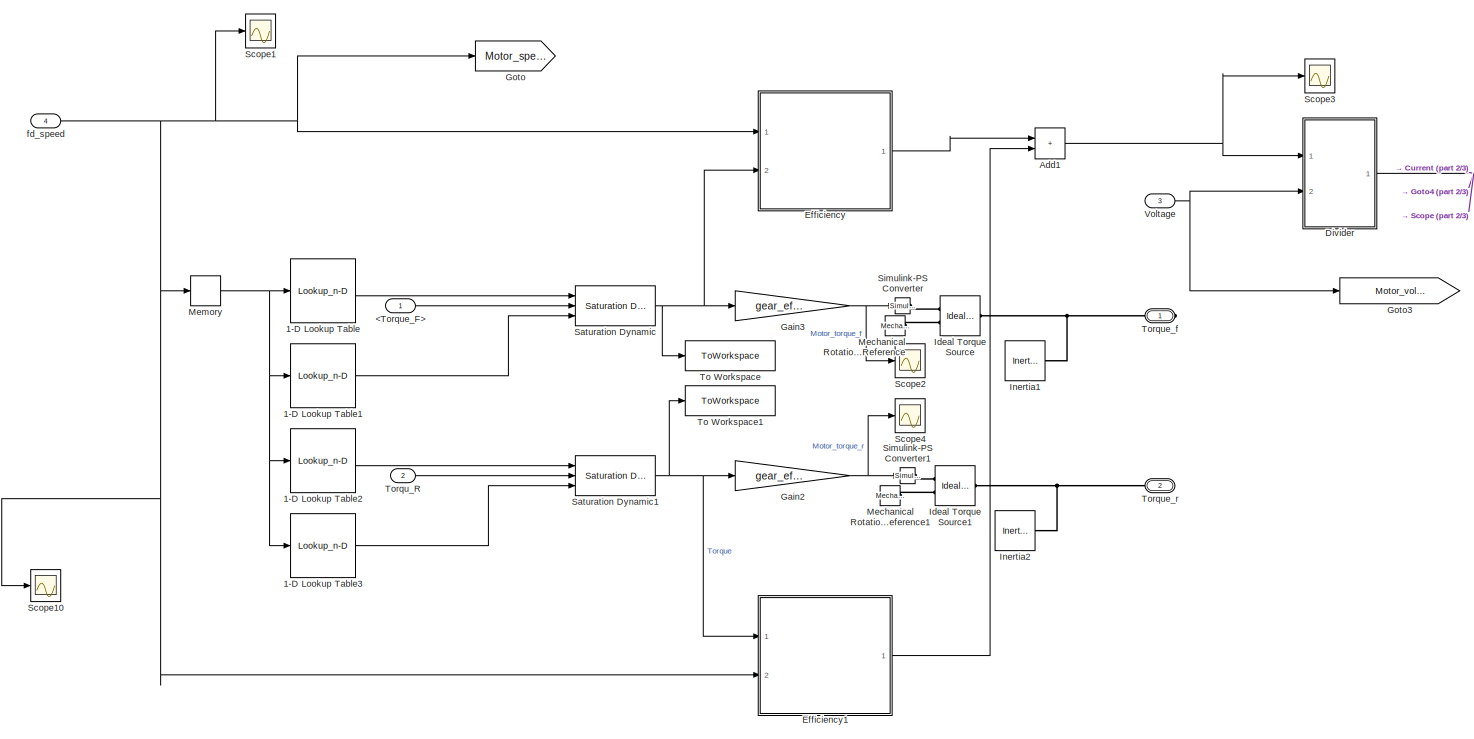
[diagram: Vehicle/Motor - part 1/3, center side, full height]
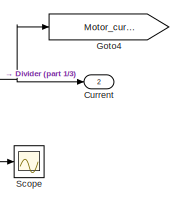
[diagram: Vehicle/Motor - part 2/3, top right region]
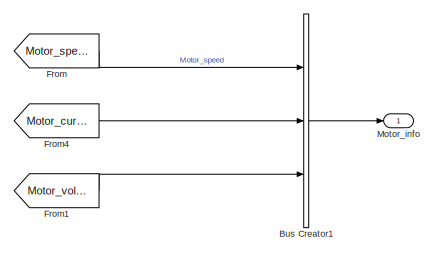
[diagram: Vehicle/Motor - part 3/3, middle left region]
BLOCK [SubSystem] Vehicle/Motor
  PortSchema = {"entries":[{"content":{"sides":[{"content":{"connectorIds":["In1","In2","In3","In4"]},"type":"ConnectorPlacement.EquallySpacedRectSide","uuid":"41143f5e-7686-4338-be62-9090af3e7fda"},{"content":{"connectorIds":["Out1","RConn1","RConn2","Out2"],"side":"RIGHT"},"type":"ConnectorPlacement.EquallySpacedRectSide","uuid":"80376a3c-2384-4fc0-8e0f-19ad3c35f516"},{"content":{"connectorIds":[],"side":"TOP"...<+283ch>
  Ports = [4, 2, 0, 0, 0, 0, 2]
  RequestExecContextInheritance = off
BLOCK [Lookup_n-D] Vehicle/Motor/1-D Lookup Table
  BreakpointsForDimension1 = Torque_curve_speed_3D3
  InputPortMap = u0
  InternalRulePriority = Speed
  NumberOfTableDimensions = 1
  Ports = [1, 1]
  RndMeth = Simplest
  Table = Torque_curve_torque_3D3
BLOCK [Lookup_n-D] Vehicle/Motor/1-D Lookup Table1
  BreakpointsForDimension1 = Torque_curve_speed_3D3
  InputPortMap = u0
  InternalRulePriority = Speed
  NumberOfTableDimensions = 1
  Ports = [1, 1]
  RndMeth = Simplest
  Table = -Torque_curve_torque_3D3
BLOCK [Lookup_n-D] Vehicle/Motor/1-D Lookup Table2
  BreakpointsForDimension1 = Torque_curve_speed_3D1
  InputPortMap = u0
  InternalRulePriority = Speed
  NumberOfTableDimensions = 1
  Ports = [1, 1]
  RndMeth = Simplest
  Table = Torque_curve_torque_3D1
BLOCK [Lookup_n-D] Vehicle/Motor/1-D Lookup Table3
  BreakpointsForDimension1 = Torque_curve_speed_3D1
  InputPortMap = u0
  InternalRulePriority = Speed
  NumberOfTableDimensions = 1
  Ports = [1, 1]
  RndMeth = Simplest
  Table = -Torque_curve_torque_3D1
BLOCK [Inport] Vehicle/Motor/<Torque_F>
BLOCK [Sum] Vehicle/Motor/Add1
  IconShape = rectangular
  Ports = [2, 1]
BLOCK [BusCreator] Vehicle/Motor/Bus Creator1
  DisplayOption = bar
  InheritFromInputs = on
  Inputs = 3
  Ports = [3, 1]
BLOCK [Outport] Vehicle/Motor/Current
  Port = 2
BLOCK [SubSystem] Vehicle/Motor/Divider
  Ports = [2, 1]
  RequestExecContextInheritance = off
BLOCK [Inport] Vehicle/Motor/Divider/1
BLOCK [Inport] Vehicle/Motor/Divider/2
  Port = 2
BLOCK [BusCreator] Vehicle/Motor/Divider/Bus Creator
  DisplayOption = bar
  InheritFromInputs = on
  Inputs = 2
  Ports = [2, 1]
BLOCK [MATLABFcn] Vehicle/Motor/Divider/Interpreted MATLAB Function
  MATLABFcn = myFunction
  Ports = [1, 1]
BLOCK [Outport] Vehicle/Motor/Divider/Out1
BLOCK [SubSystem] Vehicle/Motor/Efficiency
  Ports = [2, 1]
  RequestExecContextInheritance = off
BLOCK [Lookup_n-D] Vehicle/Motor/Efficiency/2-D Lookup Table
  BreakpointsForDimension1 = efficiency_torque_3D3
  BreakpointsForDimension2 = efficiency_speed_3D3
  InputPortMap = u0,u1
  InternalRulePriority = Speed
  Ports = [2, 1]
  RndMeth = Simplest
  Table = efficiency_3D3
BLOCK [Abs] Vehicle/Motor/Efficiency/Abs
  SaturateOnIntegerOverflow = off
BLOCK [Abs] Vehicle/Motor/Efficiency/Abs1
  SaturateOnIntegerOverflow = off
BLOCK [SubSystem] Vehicle/Motor/Efficiency/Divider
  Ports = [2, 1]
  RequestExecContextInheritance = off
BLOCK [Inport] Vehicle/Motor/Efficiency/Divider/1
BLOCK [Inport] Vehicle/Motor/Efficiency/Divider/2
  Port = 2
BLOCK [BusCreator] Vehicle/Motor/Efficiency/Divider/Bus Creator
  DisplayOption = bar
  InheritFromInputs = on
  Inputs = 2
  Ports = [2, 1]
BLOCK [MATLABFcn] Vehicle/Motor/Efficiency/Divider/Interpreted MATLAB Function
  MATLABFcn = myFunction
  Ports = [1, 1]
BLOCK [Outport] Vehicle/Motor/Efficiency/Divider/Out1
BLOCK [Outport] Vehicle/Motor/Efficiency/Power
BLOCK [Product] Vehicle/Motor/Efficiency/Product
  Ports = [2, 1]
BLOCK [Product] Vehicle/Motor/Efficiency/Product1
  Ports = [2, 1]
BLOCK [Scope] Vehicle/Motor/Efficiency/Scope
  Floating = off
  NumInputPorts = 1
  Ports = [1]
  ScopeSpecificationString = Simulink.scopes.TimeScopeBlockCfg('CurrentConfiguration', extmgr.ConfigurationSet(extmgr.Configuration('Core','General UI',true),extmgr.Configuration('Core','Source UI',true),extmgr.Configuration('Sources','WiredSimulink',true,'DataLoggingVariableName','ScopeData2'),extmgr.Configuration('Visuals','Time Domain',true,'SerializedDisplays',{struct('MinYLimReal','-126.62528','MaxYLimReal','1134.29397',...<+1417ch>
BLOCK [Scope] Vehicle/Motor/Efficiency/Scope1
  Floating = off
  NumInputPorts = 1
  Ports = [1]
  ScopeSpecificationString = Simulink.scopes.TimeScopeBlockCfg('CurrentConfiguration', extmgr.ConfigurationSet(extmgr.Configuration('Core','General UI',true),extmgr.Configuration('Core','Source UI',true),extmgr.Configuration('Sources','WiredSimulink',true,'DataLoggingVariableName','ScopeData3'),extmgr.Configuration('Visuals','Time Domain',true,'SerializedDisplays',{struct('MinYLimReal','-1.8675','MaxYLimReal','16.80748','YLab...<+1367ch>
BLOCK [Scope] Vehicle/Motor/Efficiency/Scope2
  Floating = off
  NumInputPorts = 1
  Ports = [1]
  ScopeSpecificationString = Simulink.scopes.TimeScopeBlockCfg('CurrentConfiguration', extmgr.ConfigurationSet(extmgr.Configuration('Core','General UI',true),extmgr.Configuration('Core','Source UI',true),extmgr.Configuration('Sources','WiredSimulink',true,'DataLoggingVariableName','ScopeData8'),extmgr.Configuration('Visuals','Time Domain',true,'SerializedDisplays',{struct('MinYLimReal','0.73125','MaxYLimReal','0.91875','YLabe...<+1425ch>
BLOCK [Scope] Vehicle/Motor/Efficiency/Scope3
  Floating = off
  NumInputPorts = 1
  Ports = [1]
  ScopeSpecificationString = Simulink.scopes.TimeScopeBlockCfg('CurrentConfiguration', extmgr.ConfigurationSet(extmgr.Configuration('Core','General UI',true),extmgr.Configuration('Core','Source UI',true),extmgr.Configuration('Sources','WiredSimulink',true,'DataLoggingVariableName','ScopeData9'),extmgr.Configuration('Visuals','Time Domain',true,'SerializedDisplays',{struct('MinYLimReal','-40842.63365','MaxYLimReal','38010.4121...<+1457ch>
BLOCK [Signum] Vehicle/Motor/Efficiency/Sign
BLOCK [Switch] Vehicle/Motor/Efficiency/Switch
  Criteria = u2 > Threshold
  InputSameDT = off
  SaturateOnIntegerOverflow = off
BLOCK [ToWorkspace] Vehicle/Motor/Efficiency/To Workspace
  FixptAsFi = on
  MaxDataPoints = inf
  Ports = [1]
  SampleTime = -1
  SaveFormat = Timeseries
  VariableName = Motor_efficiency_F
BLOCK [Inport] Vehicle/Motor/Efficiency/Torque
  Port = 2
BLOCK [Inport] Vehicle/Motor/Efficiency/fd_speed
  NameLocation = left
BLOCK [SubSystem] Vehicle/Motor/Efficiency1
  Ports = [2, 1]
  RequestExecContextInheritance = off
BLOCK [Lookup_n-D] Vehicle/Motor/Efficiency1/2-D Lookup Table
  BreakpointsForDimension1 = efficiency_torque_3D1
  BreakpointsForDimension2 = efficiency_speed_3D1
  InputPortMap = u0,u1
  InternalRulePriority = Speed
  Ports = [2, 1]
  RndMeth = Simplest
  Table = efficiency_3D1
BLOCK [Abs] Vehicle/Motor/Efficiency1/Abs
  SaturateOnIntegerOverflow = off
BLOCK [Abs] Vehicle/Motor/Efficiency1/Abs1
  SaturateOnIntegerOverflow = off
BLOCK [SubSystem] Vehicle/Motor/Efficiency1/Divider
  Ports = [2, 1]
  RequestExecContextInheritance = off
BLOCK [Inport] Vehicle/Motor/Efficiency1/Divider/1
BLOCK [Inport] Vehicle/Motor/Efficiency1/Divider/2
  Port = 2
BLOCK [BusCreator] Vehicle/Motor/Efficiency1/Divider/Bus Creator
  DisplayOption = bar
  InheritFromInputs = on
  Inputs = 2
  Ports = [2, 1]
BLOCK [MATLABFcn] Vehicle/Motor/Efficiency1/Divider/Interpreted MATLAB Function
  MATLABFcn = myFunction
  Ports = [1, 1]
BLOCK [Outport] Vehicle/Motor/Efficiency1/Divider/Out1
BLOCK [Outport] Vehicle/Motor/Efficiency1/Power
BLOCK [Product] Vehicle/Motor/Efficiency1/Product
  Ports = [2, 1]
BLOCK [Product] Vehicle/Motor/Efficiency1/Product1
  Ports = [2, 1]
BLOCK [Scope] Vehicle/Motor/Efficiency1/Scope
  Floating = off
  NumInputPorts = 1
  Ports = [1]
  ScopeSpecificationString = Simulink.scopes.TimeScopeBlockCfg('CurrentConfiguration', extmgr.ConfigurationSet(extmgr.Configuration('Core','General UI',true),extmgr.Configuration('Core','Source UI',true),extmgr.Configuration('Sources','WiredSimulink',true,'DataLoggingVariableName','ScopeData2'),extmgr.Configuration('Visuals','Time Domain',true,'SerializedDisplays',{struct('MinYLimReal','-94.69838','MaxYLimReal','847.31807','Y...<+1404ch>
BLOCK [Scope] Vehicle/Motor/Efficiency1/Scope1
  Floating = off
  NumInputPorts = 1
  Ports = [1]
  ScopeSpecificationString = Simulink.scopes.TimeScopeBlockCfg('CurrentConfiguration', extmgr.ConfigurationSet(extmgr.Configuration('Core','General UI',true),extmgr.Configuration('Core','Source UI',true),extmgr.Configuration('Sources','WiredSimulink',true,'DataLoggingVariableName','ScopeData3'),extmgr.Configuration('Visuals','Time Domain',true,'SerializedDisplays',{struct('MinYLimReal','-243.63431','MaxYLimReal','319.40606','...<+1434ch>
BLOCK [Scope] Vehicle/Motor/Efficiency1/Scope2
  Floating = off
  NumInputPorts = 1
  Ports = [1]
  ScopeSpecificationString = Simulink.scopes.TimeScopeBlockCfg('CurrentConfiguration', extmgr.ConfigurationSet(extmgr.Configuration('Core','General UI',true),extmgr.Configuration('Core','Source UI',true),extmgr.Configuration('Sources','WiredSimulink',true,'DataLoggingVariableName','ScopeData8'),extmgr.Configuration('Visuals','Time Domain',true,'SerializedDisplays',{struct('MinYLimReal','0.78','MaxYLimReal','0.98','YLabelReal'...<+1401ch>
BLOCK [Scope] Vehicle/Motor/Efficiency1/Scope3
  Floating = off
  NumInputPorts = 1
  Ports = [1]
  ScopeSpecificationString = Simulink.scopes.TimeScopeBlockCfg('CurrentConfiguration', extmgr.ConfigurationSet(extmgr.Configuration('Core','General UI',true),extmgr.Configuration('Core','Source UI',true),extmgr.Configuration('Sources','WiredSimulink',true,'DataLoggingVariableName','ScopeData9'),extmgr.Configuration('Visuals','Time Domain',true,'SerializedDisplays',{struct('MinYLimReal','-40842.63365','MaxYLimReal','38010.4121...<+1457ch>
BLOCK [Signum] Vehicle/Motor/Efficiency1/Sign
BLOCK [Switch] Vehicle/Motor/Efficiency1/Switch
  Criteria = u2 > Threshold
  InputSameDT = off
  SaturateOnIntegerOverflow = off
BLOCK [ToWorkspace] Vehicle/Motor/Efficiency1/To Workspace
  FixptAsFi = on
  MaxDataPoints = inf
  Ports = [1]
  SampleTime = -1
  SaveFormat = Timeseries
  VariableName = Motor_efficiency_R
BLOCK [Inport] Vehicle/Motor/Efficiency1/Torque
BLOCK [Inport] Vehicle/Motor/Efficiency1/fd_speed
  NameLocation = left
  Port = 2
BLOCK [From] Vehicle/Motor/From
  GotoTag = Motor_speed
BLOCK [From] Vehicle/Motor/From1
  GotoTag = Motor_voltage
BLOCK [From] Vehicle/Motor/From4
  GotoTag = Motor_current
BLOCK [Gain] Vehicle/Motor/Gain2
  Gain = gear_efficiency
BLOCK [Gain] Vehicle/Motor/Gain3
  Gain = gear_efficiency
BLOCK [Goto] Vehicle/Motor/Goto
  GotoTag = Motor_speed
BLOCK [Goto] Vehicle/Motor/Goto3
  GotoTag = Motor_voltage
BLOCK [Goto] Vehicle/Motor/Goto4
  GotoTag = Motor_current
BLOCK [Reference] Vehicle/Motor/Ideal Torque Source  REF=fl_lib/Mechanical/Mechanical Sources/Ideal Torque Source
  Ports = [0, 0, 0, 0, 0, 1, 2]
  SourceBlock = fl_lib/Mechanical/Mechanical Sources/Ideal Torque Source
  SourceProductBaseCode = SS
  SourceType = Ideal Torque Source
BLOCK [Reference] Vehicle/Motor/Ideal Torque Source1  REF=fl_lib/Mechanical/Mechanical Sources/Ideal Torque Source
  Ports = [0, 0, 0, 0, 0, 1, 2]
  SourceBlock = fl_lib/Mechanical/Mechanical Sources/Ideal Torque Source
  SourceProductBaseCode = SS
  SourceType = Ideal Torque Source
BLOCK [Reference] Vehicle/Motor/Inertia1  REF=fl_lib/Mechanical/Rotational Elements/Inertia
  Ports = [0, 0, 0, 0, 0, 1]
  SourceBlock = fl_lib/Mechanical/Rotational Elements/Inertia
  SourceProductBaseCode = SS
  SourceType = Inertia
BLOCK [Reference] Vehicle/Motor/Inertia2  REF=fl_lib/Mechanical/Rotational Elements/Inertia
  Ports = [0, 0, 0, 0, 0, 1]
  SourceBlock = fl_lib/Mechanical/Rotational Elements/Inertia
  SourceProductBaseCode = SS
  SourceType = Inertia
BLOCK [Reference] Vehicle/Motor/Mechanical Rotational Reference  REF=fl_lib/Mechanical/Rotational Elements/Mechanical
Rotational Reference
  Ports = [0, 0, 0, 0, 0, 1]
  SourceBlock = fl_lib/Mechanical/Rotational Elements/Mechanical\nRotational Reference
  SourceProductBaseCode = SS
  SourceType = Mechanical\nRotational Reference
BLOCK [Reference] Vehicle/Motor/Mechanical Rotational Reference1  REF=fl_lib/Mechanical/Rotational Elements/Mechanical
Rotational Reference
  Ports = [0, 0, 0, 0, 0, 1]
  SourceBlock = fl_lib/Mechanical/Rotational Elements/Mechanical\nRotational Reference
  SourceProductBaseCode = SS
  SourceType = Mechanical\nRotational Reference
BLOCK [Memory] Vehicle/Motor/Memory
  InheritSampleTime = on
  LinearizeAsDelay = on
  LinearizeMemory = on
BLOCK [Outport] Vehicle/Motor/Motor_info
BLOCK [Reference] Vehicle/Motor/Saturation Dynamic  REF=simulink/Discontinuities/Saturation
Dynamic
  Ports = [3, 1]
  SourceBlock = simulink/Discontinuities/Saturation\nDynamic
  SourceProductBaseCode = SL
  SourceType = Saturation Dynamic
BLOCK [Reference] Vehicle/Motor/Saturation Dynamic1  REF=simulink/Discontinuities/Saturation
Dynamic
  Ports = [3, 1]
  SourceBlock = simulink/Discontinuities/Saturation\nDynamic
  SourceProductBaseCode = SL
  SourceType = Saturation Dynamic
BLOCK [Scope] Vehicle/Motor/Scope
  Floating = off
  NumInputPorts = 1
  Ports = [1]
  ScopeSpecificationString = Simulink.scopes.TimeScopeBlockCfg('CurrentConfiguration', extmgr.ConfigurationSet(extmgr.Configuration('Core','General UI',true),extmgr.Configuration('Core','Source UI',true),extmgr.Configuration('Sources','WiredSimulink',true,'DataLoggingVariableName','ScopeData1'),extmgr.Configuration('Visuals','Time Domain',true,'SerializedDisplays',{struct('MinYLimReal','-31.86159','MaxYLimReal','31.14671','YL...<+1372ch>
BLOCK [Scope] Vehicle/Motor/Scope1
  Floating = off
  NumInputPorts = 1
  Ports = [1]
  ScopeSpecificationString = Simulink.scopes.TimeScopeBlockCfg('CurrentConfiguration', extmgr.ConfigurationSet(extmgr.Configuration('Core','General UI',true),extmgr.Configuration('Core','Source UI',true),extmgr.Configuration('Sources','WiredSimulink',true,'DataLoggingVariableName','ScopeData2'),extmgr.Configuration('Visuals','Time Domain',true,'SerializedDisplays',{struct('MinYLimReal','-126.62528','MaxYLimReal','1134.29397',...<+1433ch>
BLOCK [Scope] Vehicle/Motor/Scope10
  Floating = off
  NumInputPorts = 1
  Ports = [1]
  ScopeSpecificationString = Simulink.scopes.TimeScopeBlockCfg('CurrentConfiguration', extmgr.ConfigurationSet(extmgr.Configuration('Core','General UI',true),extmgr.Configuration('Core','Source UI',true),extmgr.Configuration('Sources','WiredSimulink',true,'DataLoggingVariableName','ScopeData16'),extmgr.Configuration('Visuals','Time Domain',true,'SerializedDisplays',{struct('MinYLimReal','-126.53268','MaxYLimReal','1138.79253'...<+1442ch>
BLOCK [Scope] Vehicle/Motor/Scope2
  Floating = off
  NumInputPorts = 1
  Ports = [1]
  ScopeSpecificationString = Simulink.scopes.TimeScopeBlockCfg('CurrentConfiguration', extmgr.ConfigurationSet(extmgr.Configuration('Core','General UI',true,'DisplayFullSourceName',true),extmgr.Configuration('Core','Source UI',true),extmgr.Configuration('Sources','WiredSimulink',true,'DataLoggingVariableName','ScopeData5'),extmgr.Configuration('Visuals','Time Domain',true,'SerializedDisplays',{struct('MinYLimReal','-1.7928','...<+1490ch>
BLOCK [Scope] Vehicle/Motor/Scope3
  Floating = off
  NumInputPorts = 1
  Ports = [1]
  ScopeSpecificationString = Simulink.scopes.TimeScopeBlockCfg('CurrentConfiguration', extmgr.ConfigurationSet(extmgr.Configuration('Core','General UI',true),extmgr.Configuration('Core','Source UI',true),extmgr.Configuration('Sources','WiredSimulink',true,'DataLoggingVariableName','ScopeData4'),extmgr.Configuration('Visuals','Time Domain',true,'SerializedDisplays',{struct('MinYLimReal','-4.19794','MaxYLimReal','37.77881','YLa...<+1421ch>
BLOCK [Scope] Vehicle/Motor/Scope4
  Floating = off
  NumInputPorts = 1
  Ports = [1]
  ScopeSpecificationString = Simulink.scopes.TimeScopeBlockCfg('CurrentConfiguration', extmgr.ConfigurationSet(extmgr.Configuration('Core','General UI',true,'DisplayFullSourceName',true),extmgr.Configuration('Core','Source UI',true),extmgr.Configuration('Sources','WiredSimulink',true,'DataLoggingVariableName','ScopeData6'),extmgr.Configuration('Visuals','Time Domain',true,'SerializedDisplays',{struct('MinYLimReal','-421.03202...<+1502ch>
BLOCK [Reference] Vehicle/Motor/Simulink-PS Converter  REF=nesl_utility/Simulink-PS
Converter
  Ports = [1, 0, 0, 0, 0, 0, 1]
  SourceBlock = nesl_utility/Simulink-PS\nConverter
  SourceProductBaseCode = PW,SS
  SourceType = Simulink-PS\nConverter
BLOCK [Reference] Vehicle/Motor/Simulink-PS Converter1  REF=nesl_utility/Simulink-PS
Converter
  Ports = [1, 0, 0, 0, 0, 0, 1]
  SourceBlock = nesl_utility/Simulink-PS\nConverter
  SourceProductBaseCode = PW,SS
  SourceType = Simulink-PS\nConverter
BLOCK [ToWorkspace] Vehicle/Motor/To Workspace
  FixptAsFi = on
  MaxDataPoints = inf
  Ports = [1]
  SampleTime = -1
  VariableName = T_F
BLOCK [ToWorkspace] Vehicle/Motor/To Workspace1
  FixptAsFi = on
  MaxDataPoints = inf
  Ports = [1]
  SampleTime = -1
  VariableName = T_R
BLOCK [Inport] Vehicle/Motor/Torqu_R
  Port = 2
BLOCK [PMIOPort] Vehicle/Motor/Torque_f
  NameLocation = left
  Side = Right
BLOCK [PMIOPort] Vehicle/Motor/Torque_r
  Port = 2
  Side = Right
BLOCK [Inport] Vehicle/Motor/Voltage
  Port = 3
BLOCK [Inport] Vehicle/Motor/fd_speed
  NameLocation = top
  Port = 4
BLOCK [Scope] Vehicle/Scope
  Floating = off
  NumInputPorts = 1
  Ports = [1]
  ScopeSpecificationString = Simulink.scopes.TimeScopeBlockCfg('CurrentConfiguration', extmgr.ConfigurationSet(extmgr.Configuration('Core','General UI',true),extmgr.Configuration('Core','Source UI',true),extmgr.Configuration('Sources','WiredSimulink',true),extmgr.Configuration('Visuals','Time Domain',true,'SerializedDisplays',{struct('MinYLimReal','0.75193','MaxYLimReal','0.80393','YLabelReal','','MinYLimMag','0.75193','MaxYL...<+1373ch>
BLOCK [Scope] Vehicle/Scope1
  Floating = off
  NumInputPorts = 1
  Ports = [1]
  ScopeSpecificationString = Simulink.scopes.TimeScopeBlockCfg('CurrentConfiguration', extmgr.ConfigurationSet(extmgr.Configuration('Core','General UI',true),extmgr.Configuration('Core','Source UI',true),extmgr.Configuration('Sources','WiredSimulink',true,'DataLoggingVariableName','ScopeData1'),extmgr.Configuration('Visuals','Time Domain',true,'SerializedDisplays',{struct('MinYLimReal','-278.03037','MaxYLimReal','550.83569','...<+1380ch>
BLOCK [Outport] Vehicle/V_out
LINE Clock:1 -> To Workspace:1
LINE Controller/1-D Lookup Table1:1 -> Controller/Add2:1
LINE Controller/1-D Lookup Table2:1 -> Controller/Product1:2
LINE Controller/1-D Lookup Table3:1 -> Controller/Add3:1
LINE Controller/1-D Lookup Table4:1 -> Controller/Add2:2
LINE Controller/1-D Lookup Table5:1 -> Controller/Add3:2
LINE Controller/1-D Lookup Table:1 -> Controller/Product:2
LINE Controller/Add1:1 -> Controller/Goto1:1
NET Controller/Add2:1 -> Controller/MinMax:3, Controller/Scope3:1
LINE Controller/Add3:1 -> Controller/MinMax1:2
NET Controller/Add:1 -> Controller/Goto:1, Controller/MinMax2:2, Controller/Subtract:1
LINE Controller/Bus Creator:1 -> Controller/C_out:1
NET Controller/Bus Selector1:1 -> Controller/1-D Lookup Table2:1, Controller/1-D Lookup Table:1
NET Controller/Bus Selector1:2 -> Controller/1-D Lookup Table1:1, Controller/1-D Lookup Table3:1, Controller/1-D Lookup Table4:1, Controller/1-D Lookup Table5:1
NET Controller/Bus Selector:1 -> Controller/Gain:1, Controller/Scope2:1
NET Controller/Bus Selector:2 -> Controller/Add1:1, Controller/Gain5:1
LINE Controller/Constant1:1 -> Controller/MinMax2:1
LINE Controller/Constant:1 -> Controller/Gain4:1
LINE Controller/D_out:1 -> Controller/Bus Selector:1
LINE Controller/From1:1 -> Controller/Bus Creator:2
LINE Controller/From2:1 -> Controller/Bus Creator:4
LINE Controller/From3:1 -> Controller/Bus Creator:3
LINE Controller/From:1 -> Controller/Bus Creator:1
LINE Controller/Gain1:1 -> Controller/Gain2:1
LINE Controller/Gain2:1 -> Controller/Product:1
LINE Controller/Gain3:1 -> Controller/Gain1:1
LINE Controller/Gain4:1 -> Controller/Gain3:1
LINE Controller/Gain5:1 -> Controller/Product1:1
LINE Controller/Gain6:1 -> Controller/Add1:2
NET Controller/Gain:1 -> Controller/MinMax:1, Controller/Scope1:1
NET Controller/MinMax1:1 -> Controller/Add:2, Controller/Gain6:1
NET Controller/MinMax2:1 -> Controller/Goto3:1, Controller/Subtract:2
LINE Controller/MinMax:1 -> Controller/Add:1
LINE Controller/Product1:1 -> Controller/MinMax1:1
NET Controller/Product:1 -> Controller/MinMax:2, Controller/Scope4:1
LINE Controller/Subtract:1 -> Controller/Goto2:1
LINE Controller/V_out:1 -> Controller/Bus Selector1:1
LINE Controller:1 -> Vehicle:1
NET Driver/Bus Creator:1 -> Driver/D_out:1, Driver/To workspace:1
NET Driver/Bus Selector:1 -> Driver/Plant:2, Driver/Scope1:1
NET Driver/Drive_cycle:1 -> Driver/Plant:1, Driver/Scope:1
NET Driver/Plant/Add:1 -> Driver/Plant/Saturation1:1, Driver/Plant/Saturation:1, Driver/Plant/Scope1:1
NET Driver/Plant/Chasis_speed:1 -> Driver/Plant/Subtract:2, Driver/Plant/Vehicle speed controller:1
NET Driver/Plant/Drive_cycle:1 -> Driver/Plant/Dyno_torque_loss:1, Driver/Plant/Linear_speed_demand:1, Driver/Plant/Scope5:1, Driver/Plant/Subtract:1, Driver/Plant/Vehicle speed controller:2
LINE Driver/Plant/Dyno_torque_loss/Add1:1 -> Driver/Plant/Dyno_torque_loss/Goto:1
NET Driver/Plant/Dyno_torque_loss/Add:1 -> Driver/Plant/Dyno_torque_loss/Product1:2, Driver/Plant/Dyno_torque_loss/Scope:1
LINE Driver/Plant/Dyno_torque_loss/Constant1:1 -> Driver/Plant/Dyno_torque_loss/Product:1
LINE Driver/Plant/Dyno_torque_loss/Constant:1 -> Driver/Plant/Dyno_torque_loss/Product1:1
NET Driver/Plant/Dyno_torque_loss/Derivative:1 -> Driver/Plant/Dyno_torque_loss/Product:2, Driver/Plant/Dyno_torque_loss/Scope2:1
LINE Driver/Plant/Dyno_torque_loss/From1:1 -> Driver/Plant/Dyno_torque_loss/Add1:1
LINE Driver/Plant/Dyno_torque_loss/From2:1 -> Driver/Plant/Dyno_torque_loss/Add1:2
LINE Driver/Plant/Dyno_torque_loss/From3:1 -> Driver/Plant/Dyno_torque_loss/Add1:3
LINE Driver/Plant/Dyno_torque_loss/From:1 -> Driver/Plant/Dyno_torque_loss/Add:1
NET Driver/Plant/Dyno_torque_loss/Linear_speed_demand:1 -> Driver/Plant/Dyno_torque_loss/Derivative:1, Driver/Plant/Dyno_torque_loss/Scope3:1
LINE Driver/Plant/Dyno_torque_loss/Product1:1 -> Driver/Plant/Dyno_torque_loss/Torque_loss:1
NET Driver/Plant/Dyno_torque_loss/Product:1 -> Driver/Plant/Dyno_torque_loss/Add:2, Driver/Plant/Dyno_torque_loss/Scope1:1
NET Driver/Plant/Dyno_torque_loss:1 -> Driver/Plant/Add:2, Driver/Plant/Scope3:1
NET Driver/Plant/Saturation1:1 -> Driver/Plant/Scope4:1, Driver/Plant/Torque_break_demand:1
NET Driver/Plant/Saturation:1 -> Driver/Plant/Scope2:1, Driver/Plant/Torque_acc_demand:1
LINE Driver/Plant/Subtract:1 -> Driver/Plant/Vehicle speed controller:3
LINE Driver/Plant/Vehicle speed controller/Add:1 -> Driver/Plant/Vehicle speed controller/Delta_torque:1
LINE Driver/Plant/Vehicle speed controller/Chasis_speed:1 -> Driver/Plant/Vehicle speed controller/Relational Operator:1
LINE Driver/Plant/Vehicle speed controller/Constant:1 -> Driver/Plant/Vehicle speed controller/Relational Operator:2
NET Driver/Plant/Vehicle speed controller/Delta speed:1 -> Driver/Plant/Vehicle speed controller/Integrator:1, Driver/Plant/Vehicle speed controller/P:1
LINE Driver/Plant/Vehicle speed controller/I:1 -> Driver/Plant/Vehicle speed controller/Add:2
LINE Driver/Plant/Vehicle speed controller/Integrator:1 -> Driver/Plant/Vehicle speed controller/I:1
LINE Driver/Plant/Vehicle speed controller/P:1 -> Driver/Plant/Vehicle speed controller/Add:1
LINE Driver/Plant/Vehicle speed controller/Relational Operator:1 -> Driver/Plant/Vehicle speed controller/Integrator:2
NET Driver/Plant/Vehicle speed controller:1 -> Driver/Plant/Add:1, Driver/Plant/Scope:1
LINE Driver/Plant:1 -> Driver/Bus Creator:1
LINE Driver/Plant:2 -> Driver/Bus Creator:2
LINE Driver/Plant:3 -> Driver/Bus Creator:3
LINE Driver/To workspace/Bus Selector:1 -> Driver/To workspace/To Workspace:1
LINE Driver/To workspace/Bus Selector:2 -> Driver/To workspace/To Workspace3:1
LINE Driver/To workspace/Bus Selector:3 -> Driver/To workspace/To Workspace2:1
LINE Driver/To workspace/In1:1 -> Driver/To workspace/Bus Selector:1
LINE Driver/V_out:1 -> Driver/Bus Selector:1
LINE Driver:1 -> Controller:1
LINE From Workspace:1 -> Gain:1
NET Gain:1 -> Driver:1, Scope:1
NET Memory:1 -> Controller:2, Driver:2
LINE Vehicle/Add:1 -> Vehicle/Battery:1
LINE Vehicle/Battery/Bus Creator:1 -> Vehicle/Battery/Battery_info:1
LINE Vehicle/Battery/Constant:1 -> Vehicle/Battery/Relational Operator:2
NET Vehicle/Battery/Current:1 -> Vehicle/Battery/Goto:1, Vehicle/Battery/SOC_caculation:1, Vehicle/Battery/To Workspace1:1, Vehicle/Battery/Volt_caculation:2
LINE Vehicle/Battery/From Workspace1:1 -> Vehicle/Battery/Product1:2
LINE Vehicle/Battery/From Workspace:1 -> Vehicle/Battery/Product1:1
LINE Vehicle/Battery/From1:1 -> Vehicle/Battery/Bus Creator:5
LINE Vehicle/Battery/From2:1 -> Vehicle/Battery/Product:1
LINE Vehicle/Battery/From3:1 -> Vehicle/Battery/Bus Creator:2
LINE Vehicle/Battery/From4:1 -> Vehicle/Battery/Bus Creator:4
LINE Vehicle/Battery/From5:1 -> Vehicle/Battery/Bus Creator:3
LINE Vehicle/Battery/From6:1 -> Vehicle/Battery/Product:2
LINE Vehicle/Battery/From:1 -> Vehicle/Battery/Bus Creator:1
LINE Vehicle/Battery/Integrator1:1 -> Vehicle/Battery/To Workspace3:1
LINE Vehicle/Battery/Integrator:1 -> Vehicle/Battery/To Workspace2:1
LINE Vehicle/Battery/Product1:1 -> Vehicle/Battery/Integrator1:1
LINE Vehicle/Battery/Product:1 -> Vehicle/Battery/Integrator:1
LINE Vehicle/Battery/Relational Operator:1 -> Vehicle/Battery/Stop Simulation:1
LINE Vehicle/Battery/SOC_caculation/Add:1 -> Vehicle/Battery/SOC_caculation/Divide:1
NET Vehicle/Battery/SOC_caculation/Constant1:1 -> Vehicle/Battery/SOC_caculation/Divide:2, Vehicle/Battery/SOC_caculation/Product:2
LINE Vehicle/Battery/SOC_caculation/Constant:1 -> Vehicle/Battery/SOC_caculation/Product:1
NET Vehicle/Battery/SOC_caculation/Current:1 -> Vehicle/Battery/SOC_caculation/Gain:1, Vehicle/Battery/SOC_caculation/Scope1:1
LINE Vehicle/Battery/SOC_caculation/Divide:1 -> Vehicle/Battery/SOC_caculation/Saturation:1
LINE Vehicle/Battery/SOC_caculation/Gain1:1 -> Vehicle/Battery/SOC_caculation/Integrator:1
LINE Vehicle/Battery/SOC_caculation/Gain:1 -> Vehicle/Battery/SOC_caculation/Gain1:1
NET Vehicle/Battery/SOC_caculation/Integrator:1 -> Vehicle/Battery/SOC_caculation/Add:1, Vehicle/Battery/SOC_caculation/Scope2:1
LINE Vehicle/Battery/SOC_caculation/Product:1 -> Vehicle/Battery/SOC_caculation/Add:2
NET Vehicle/Battery/SOC_caculation/Saturation:1 -> Vehicle/Battery/SOC_caculation/SOC:1, Vehicle/Battery/SOC_caculation/Scope:1, Vehicle/Battery/SOC_caculation/To Workspace:1
NET Vehicle/Battery/SOC_caculation:1 -> Vehicle/Battery/Goto1:1, Vehicle/Battery/Relational Operator:1, Vehicle/Battery/Volt_caculation:1
NET Vehicle/Battery/Volt_caculation/1-D Lookup Table:1 -> Vehicle/Battery/Volt_caculation/Goto:1, Vehicle/Battery/Volt_caculation/Subtract:1
NET Vehicle/Battery/Volt_caculation/Constant:1 -> Vehicle/Battery/Volt_caculation/Goto1:1, Vehicle/Battery/Volt_caculation/Product1:2
LINE Vehicle/Battery/Volt_caculation/Current:1 -> Vehicle/Battery/Volt_caculation/Product1:1
LINE Vehicle/Battery/Volt_caculation/From:1 -> Vehicle/Battery/Volt_caculation/Voltage:1
LINE Vehicle/Battery/Volt_caculation/Product1:1 -> Vehicle/Battery/Volt_caculation/Subtract:2
LINE Vehicle/Battery/Volt_caculation/SOC:1 -> Vehicle/Battery/Volt_caculation/1-D Lookup Table:1
LINE Vehicle/Battery/Volt_caculation/Subtract:1 -> Vehicle/Battery/Volt_caculation/Goto2:1
NET Vehicle/Battery/Volt_caculation:1 -> Vehicle/Battery/Goto2:1, Vehicle/Battery/Scope:1, Vehicle/Battery/To Workspace:1, Vehicle/Battery/Voltage:1
LINE Vehicle/Battery:1 -> Vehicle/Goto6:1
NET Vehicle/Battery:2 -> Vehicle/Electrical _accessories:1, Vehicle/Motor:3
LINE Vehicle/Bus Creator:1 -> Vehicle/V_out:1
LINE Vehicle/Bus Selector1:1 -> Vehicle/Motor:2
LINE Vehicle/Bus Selector1:2 -> Vehicle/Motor:1
LINE Vehicle/Bus Selector:1 -> Vehicle/Chassis:1
LINE Vehicle/C_out:1 -> Vehicle/Goto:1
NET Vehicle/Chassis/<Torque_friction_break>:1 -> Vehicle/Chassis/Gain2:1, Vehicle/Chassis/Gain3:1
LINE Vehicle/Chassis/Constant2:1 -> Vehicle/Chassis/Gain:1
LINE Vehicle/Chassis/Divide:1 -> Vehicle/Chassis/Gain1:1
LINE Vehicle/Chassis/Gain1:1 -> Vehicle/Chassis/fd_speed:1
LINE Vehicle/Chassis/Gain2:1 -> Vehicle/Chassis/Simulink-PS Converter2:1
LINE Vehicle/Chassis/Gain3:1 -> Vehicle/Chassis/Simulink-PS Converter1:1
LINE Vehicle/Chassis/Gain:1 -> Vehicle/Chassis/Divide:2
LINE Vehicle/Chassis/PS-Simulink Converter1:1 -> Vehicle/Chassis/Scope:1
LINE Vehicle/Chassis/PS-Simulink Converter2:1 -> Vehicle/Chassis/Scope1:1
NET Vehicle/Chassis/PS-Simulink Converter3:1 -> Vehicle/Chassis/Scope2:1, Vehicle/Chassis/To Workspace:1
NET Vehicle/Chassis/PS-Simulink Converter4:1 -> Vehicle/Chassis/Scope3:1, Vehicle/Chassis/To Workspace1:1
NET Vehicle/Chassis/PS-Simulink Converter:1 -> Vehicle/Chassis/Divide:1, Vehicle/Chassis/Goto:1
LINE Vehicle/Chassis:1 -> Vehicle/Motor:4
LINE Vehicle/Electrical _accessories/Constant:1 -> Vehicle/Electrical _accessories/Divider:1
LINE Vehicle/Electrical _accessories/Divider/Bus Creator:1 -> Vehicle/Electrical _accessories/Divider/Interpreted MATLAB Function:1
LINE Vehicle/Electrical _accessories/Divider/Current:1 -> Vehicle/Electrical _accessories/Divider/Bus Creator:1
LINE Vehicle/Electrical _accessories/Divider/Interpreted MATLAB Function:1 -> Vehicle/Electrical _accessories/Divider/Out1:1
LINE Vehicle/Electrical _accessories/Divider/Voltage:1 -> Vehicle/Electrical _accessories/Divider/Bus Creator:2
LINE Vehicle/Electrical _accessories/Divider:1 -> Vehicle/Electrical _accessories/Current:1
LINE Vehicle/Electrical _accessories/Voltage:1 -> Vehicle/Electrical _accessories/Divider:2
LINE Vehicle/Electrical _accessories:1 -> Vehicle/Goto5:1
NET Vehicle/Electrical _accessories:2 -> Vehicle/Add:2, Vehicle/Scope:1
LINE Vehicle/From2:1 -> Vehicle/Bus Creator:2
LINE Vehicle/From3:1 -> Vehicle/Bus Creator:4
LINE Vehicle/From4:1 -> Vehicle/Bus Creator:3
LINE Vehicle/From6:1 -> Vehicle/Bus Selector:1
LINE Vehicle/From7:1 -> Vehicle/Bus Selector1:1
LINE Vehicle/From:1 -> Vehicle/Bus Creator:1
LINE Vehicle/Motor/1-D Lookup Table1:1 -> Vehicle/Motor/Saturation Dynamic:3
LINE Vehicle/Motor/1-D Lookup Table2:1 -> Vehicle/Motor/Saturation Dynamic1:1
LINE Vehicle/Motor/1-D Lookup Table3:1 -> Vehicle/Motor/Saturation Dynamic1:3
LINE Vehicle/Motor/1-D Lookup Table:1 -> Vehicle/Motor/Saturation Dynamic:1
LINE Vehicle/Motor/<Torque_F>:1 -> Vehicle/Motor/Saturation Dynamic:2
NET Vehicle/Motor/Add1:1 -> Vehicle/Motor/Divider:1, Vehicle/Motor/Scope3:1
LINE Vehicle/Motor/Bus Creator1:1 -> Vehicle/Motor/Motor_info:1
LINE Vehicle/Motor/Divider/1:1 -> Vehicle/Motor/Divider/Bus Creator:1
LINE Vehicle/Motor/Divider/2:1 -> Vehicle/Motor/Divider/Bus Creator:2
LINE Vehicle/Motor/Divider/Bus Creator:1 -> Vehicle/Motor/Divider/Interpreted MATLAB Function:1
LINE Vehicle/Motor/Divider/Interpreted MATLAB Function:1 -> Vehicle/Motor/Divider/Out1:1
NET Vehicle/Motor/Divider:1 -> Vehicle/Motor/Current:1, Vehicle/Motor/Goto4:1, Vehicle/Motor/Scope:1
NET Vehicle/Motor/Efficiency/2-D Lookup Table:1 -> Vehicle/Motor/Efficiency/Divider:2, Vehicle/Motor/Efficiency/Product1:1, Vehicle/Motor/Efficiency/Scope2:1, Vehicle/Motor/Efficiency/To Workspace:1
LINE Vehicle/Motor/Efficiency/Abs1:1 -> Vehicle/Motor/Efficiency/2-D Lookup Table:1
LINE Vehicle/Motor/Efficiency/Abs:1 -> Vehicle/Motor/Efficiency/2-D Lookup Table:2
LINE Vehicle/Motor/Efficiency/Divider/1:1 -> Vehicle/Motor/Efficiency/Divider/Bus Creator:1
LINE Vehicle/Motor/Efficiency/Divider/2:1 -> Vehicle/Motor/Efficiency/Divider/Bus Creator:2
LINE Vehicle/Motor/Efficiency/Divider/Bus Creator:1 -> Vehicle/Motor/Efficiency/Divider/Interpreted MATLAB Function:1
LINE Vehicle/Motor/Efficiency/Divider/Interpreted MATLAB Function:1 -> Vehicle/Motor/Efficiency/Divider/Out1:1
LINE Vehicle/Motor/Efficiency/Divider:1 -> Vehicle/Motor/Efficiency/Switch:1
LINE Vehicle/Motor/Efficiency/Product1:1 -> Vehicle/Motor/Efficiency/Switch:3
NET Vehicle/Motor/Efficiency/Product:1 -> Vehicle/Motor/Efficiency/Divider:1, Vehicle/Motor/Efficiency/Product1:2, Vehicle/Motor/Efficiency/Scope3:1, Vehicle/Motor/Efficiency/Sign:1
LINE Vehicle/Motor/Efficiency/Sign:1 -> Vehicle/Motor/Efficiency/Switch:2
LINE Vehicle/Motor/Efficiency/Switch:1 -> Vehicle/Motor/Efficiency/Power:1
NET Vehicle/Motor/Efficiency/Torque:1 -> Vehicle/Motor/Efficiency/Abs1:1, Vehicle/Motor/Efficiency/Product:1, Vehicle/Motor/Efficiency/Scope1:1
NET Vehicle/Motor/Efficiency/fd_speed:1 -> Vehicle/Motor/Efficiency/Abs:1, Vehicle/Motor/Efficiency/Product:2, Vehicle/Motor/Efficiency/Scope:1
NET Vehicle/Motor/Efficiency1/2-D Lookup Table:1 -> Vehicle/Motor/Efficiency1/Divider:2, Vehicle/Motor/Efficiency1/Product1:1, Vehicle/Motor/Efficiency1/Scope2:1, Vehicle/Motor/Efficiency1/To Workspace:1
LINE Vehicle/Motor/Efficiency1/Abs1:1 -> Vehicle/Motor/Efficiency1/2-D Lookup Table:1
LINE Vehicle/Motor/Efficiency1/Abs:1 -> Vehicle/Motor/Efficiency1/2-D Lookup Table:2
LINE Vehicle/Motor/Efficiency1/Divider/1:1 -> Vehicle/Motor/Efficiency1/Divider/Bus Creator:1
LINE Vehicle/Motor/Efficiency1/Divider/2:1 -> Vehicle/Motor/Efficiency1/Divider/Bus Creator:2
LINE Vehicle/Motor/Efficiency1/Divider/Bus Creator:1 -> Vehicle/Motor/Efficiency1/Divider/Interpreted MATLAB Function:1
LINE Vehicle/Motor/Efficiency1/Divider/Interpreted MATLAB Function:1 -> Vehicle/Motor/Efficiency1/Divider/Out1:1
LINE Vehicle/Motor/Efficiency1/Divider:1 -> Vehicle/Motor/Efficiency1/Switch:1
LINE Vehicle/Motor/Efficiency1/Product1:1 -> Vehicle/Motor/Efficiency1/Switch:3
NET Vehicle/Motor/Efficiency1/Product:1 -> Vehicle/Motor/Efficiency1/Divider:1, Vehicle/Motor/Efficiency1/Product1:2, Vehicle/Motor/Efficiency1/Scope3:1, Vehicle/Motor/Efficiency1/Sign:1
LINE Vehicle/Motor/Efficiency1/Sign:1 -> Vehicle/Motor/Efficiency1/Switch:2
LINE Vehicle/Motor/Efficiency1/Switch:1 -> Vehicle/Motor/Efficiency1/Power:1
NET Vehicle/Motor/Efficiency1/Torque:1 -> Vehicle/Motor/Efficiency1/Abs1:1, Vehicle/Motor/Efficiency1/Product:1, Vehicle/Motor/Efficiency1/Scope1:1
NET Vehicle/Motor/Efficiency1/fd_speed:1 -> Vehicle/Motor/Efficiency1/Abs:1, Vehicle/Motor/Efficiency1/Product:2, Vehicle/Motor/Efficiency1/Scope:1
LINE Vehicle/Motor/Efficiency1:1 -> Vehicle/Motor/Add1:2
LINE Vehicle/Motor/Efficiency:1 -> Vehicle/Motor/Add1:1
LINE Vehicle/Motor/From1:1 -> Vehicle/Motor/Bus Creator1:3
LINE Vehicle/Motor/From4:1 -> Vehicle/Motor/Bus Creator1:2
LINE Vehicle/Motor/From:1 -> Vehicle/Motor/Bus Creator1:1
NET Vehicle/Motor/Gain2:1 -> Vehicle/Motor/Scope4:1, Vehicle/Motor/Simulink-PS Converter1:1
NET Vehicle/Motor/Gain3:1 -> Vehicle/Motor/Scope2:1, Vehicle/Motor/Simulink-PS Converter:1
NET Vehicle/Motor/Memory:1 -> Vehicle/Motor/1-D Lookup Table1:1, Vehicle/Motor/1-D Lookup Table2:1, Vehicle/Motor/1-D Lookup Table3:1, Vehicle/Motor/1-D Lookup Table:1
NET Vehicle/Motor/Saturation Dynamic1:1 -> Vehicle/Motor/Efficiency1:1, Vehicle/Motor/Gain2:1, Vehicle/Motor/To Workspace1:1
NET Vehicle/Motor/Saturation Dynamic:1 -> Vehicle/Motor/Efficiency:2, Vehicle/Motor/Gain3:1, Vehicle/Motor/To Workspace:1
LINE Vehicle/Motor/Torqu_R:1 -> Vehicle/Motor/Saturation Dynamic1:2
NET Vehicle/Motor/Voltage:1 -> Vehicle/Motor/Divider:2, Vehicle/Motor/Goto3:1
NET Vehicle/Motor/fd_speed:1 -> Vehicle/Motor/Efficiency1:2, Vehicle/Motor/Efficiency:1, Vehicle/Motor/Goto:1, Vehicle/Motor/Memory:1, Vehicle/Motor/Scope10:1, Vehicle/Motor/Scope1:1
LINE Vehicle/Motor:1 -> Vehicle/Goto4:1
NET Vehicle/Motor:2 -> Vehicle/Add:1, Vehicle/Scope1:1
LINE Vehicle:1 -> Memory:1
PLINE Vehicle/Chassis/Ideal Torque Sensor1:LConn1 -- Vehicle/Chassis/Simple Gear1:RConn1
PNET net1: Vehicle/Chassis/Ideal Torque Sensor1:RConn1 -- Vehicle/Chassis/Ideal Torque Source1:LConn1 -- Vehicle/Chassis/Inertia2:LConn1 -- Vehicle/Chassis/Inertia3:LConn1 -- Vehicle/Chassis/Tire (Magic Formula)1:LConn2 -- Vehicle/Chassis/Tire (Magic Formula)2:LConn2
PLINE Vehicle/Chassis/Ideal Torque Sensor1:RConn2 -- Vehicle/Chassis/PS-Simulink Converter2:LConn1
PLINE Vehicle/Chassis/Ideal Torque Sensor:LConn1 -- Vehicle/Chassis/Simple Gear:RConn1
PNET net2: Vehicle/Chassis/Ideal Torque Sensor:RConn1 -- Vehicle/Chassis/Ideal Torque Source2:LConn1 -- Vehicle/Chassis/Inertia1:LConn1 -- Vehicle/Chassis/Inertia:LConn1 -- Vehicle/Chassis/Tire (Magic Formula)3:LConn2 -- Vehicle/Chassis/Tire (Magic Formula):LConn2
PLINE Vehicle/Chassis/Ideal Torque Sensor:RConn2 -- Vehicle/Chassis/PS-Simulink Converter1:LConn1
PLINE Vehicle/Chassis/Ideal Torque Source1:RConn1 -- Vehicle/Chassis/Simulink-PS Converter1:RConn1
PLINE Vehicle/Chassis/Ideal Torque Source1:RConn2 -- Vehicle/Chassis/Mechanical Rotational Reference1:LConn1
PLINE Vehicle/Chassis/Ideal Torque Source2:RConn1 -- Vehicle/Chassis/Simulink-PS Converter2:RConn1
PLINE Vehicle/Chassis/Ideal Torque Source2:RConn2 -- Vehicle/Chassis/Mechanical Rotational Reference2:LConn1
PLINE Vehicle/Chassis/PS Constant2:RConn1 -- Vehicle/Chassis/Vehicle Body:LConn3
PLINE Vehicle/Chassis/PS Constant:RConn1 -- Vehicle/Chassis/Vehicle Body:RConn3
PLINE Vehicle/Chassis/PS-Simulink Converter3:LConn1 -- Vehicle/Chassis/Tire (Magic Formula)1:RConn1
PLINE Vehicle/Chassis/PS-Simulink Converter4:LConn1 -- Vehicle/Chassis/Tire (Magic Formula)3:RConn1
PLINE Vehicle/Chassis/PS-Simulink Converter:LConn1 -- Vehicle/Chassis/Vehicle Body:LConn2
PNET net3: Vehicle/Chassis/Simple Gear1:LConn1 -- Vehicle/Chassis/Solver Configuration:RConn1 -- Vehicle/Chassis/Torque_r:RConn1
PLINE Vehicle/Chassis/Simple Gear:LConn1 -- Vehicle/Chassis/Torque_f:RConn1
PNET net4: Vehicle/Chassis/Tire (Magic Formula)1:LConn1 -- Vehicle/Chassis/Tire (Magic Formula)2:LConn1 -- Vehicle/Chassis/Vehicle Body:RConn1
PNET net5: Vehicle/Chassis/Tire (Magic Formula)1:RConn2 -- Vehicle/Chassis/Tire (Magic Formula)2:RConn2 -- Vehicle/Chassis/Tire (Magic Formula)3:RConn2 -- Vehicle/Chassis/Tire (Magic Formula):RConn2 -- Vehicle/Chassis/Vehicle Body:LConn1
PNET net6: Vehicle/Chassis/Tire (Magic Formula)3:LConn1 -- Vehicle/Chassis/Tire (Magic Formula):LConn1 -- Vehicle/Chassis/Vehicle Body:RConn2
PLINE Vehicle/Chassis:LConn1 -- Vehicle/Motor:RConn1
PLINE Vehicle/Chassis:LConn2 -- Vehicle/Motor:RConn2
PNET net7: Vehicle/Motor/Ideal Torque Source1:LConn1 -- Vehicle/Motor/Inertia2:LConn1 -- Vehicle/Motor/Torque_r:RConn1
PLINE Vehicle/Motor/Ideal Torque Source1:RConn1 -- Vehicle/Motor/Simulink-PS Converter1:RConn1
PLINE Vehicle/Motor/Ideal Torque Source1:RConn2 -- Vehicle/Motor/Mechanical Rotational Reference1:LConn1
PNET net8: Vehicle/Motor/Ideal Torque Source:LConn1 -- Vehicle/Motor/Inertia1:LConn1 -- Vehicle/Motor/Torque_f:RConn1
PLINE Vehicle/Motor/Ideal Torque Source:RConn1 -- Vehicle/Motor/Simulink-PS Converter:RConn1
PLINE Vehicle/Motor/Ideal Torque Source:RConn2 -- Vehicle/Motor/Mechanical Rotational Reference:LConn1
note: NET lines group one-source signal fan-out (src -> all destinations, sorted); 1:1 wires keep LINE; PNET lines group multi-terminal physical nets as a canonical sorted terminal list (undirected conserving connections); 2-terminal nets keep the pairwise PLINE form
